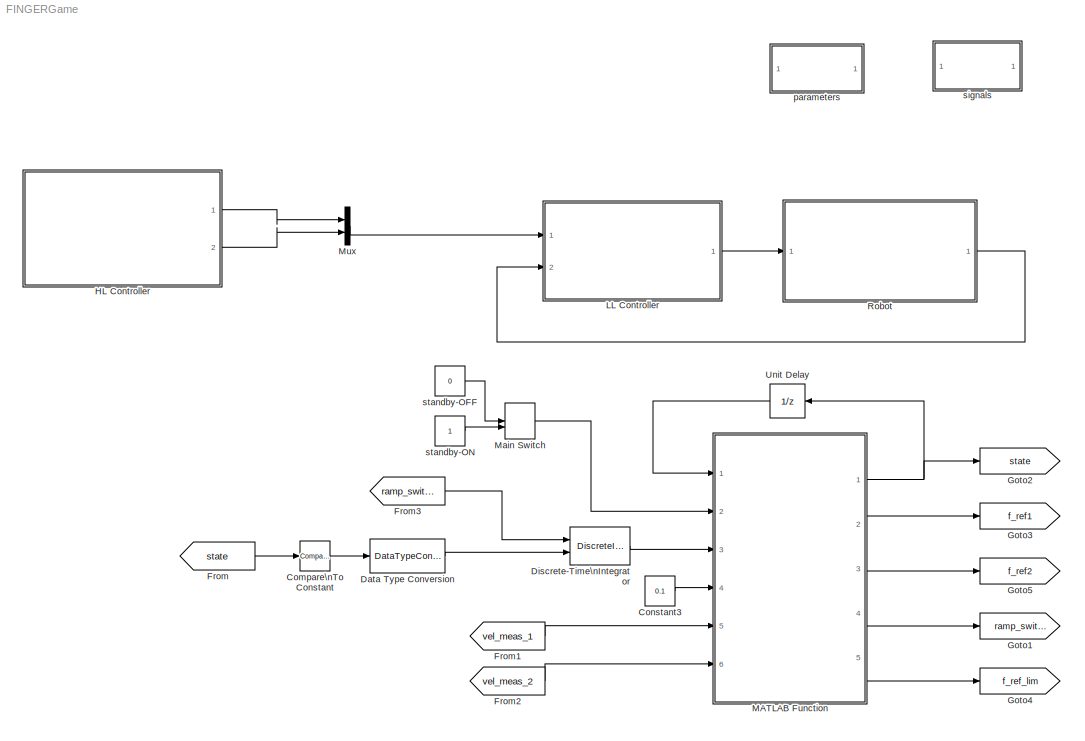
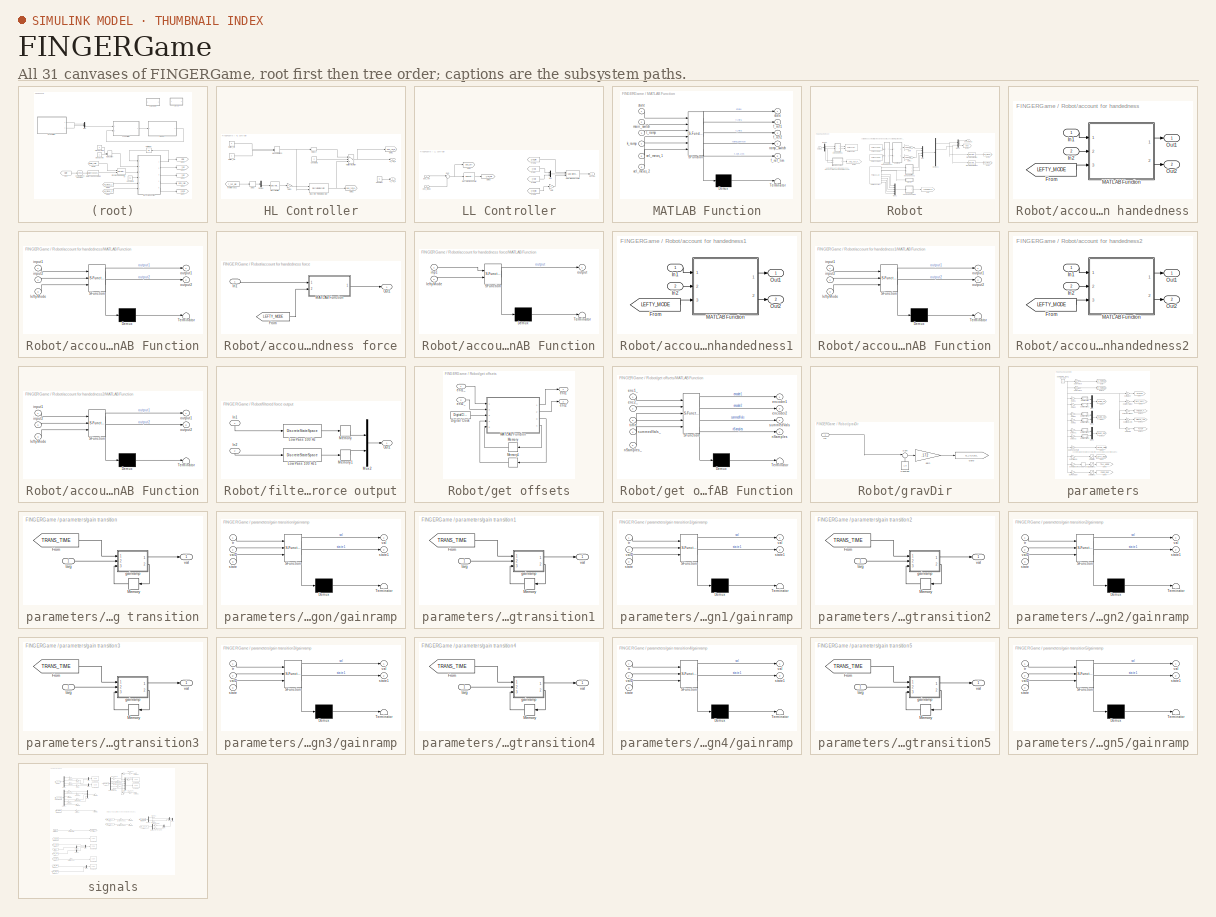
[diagram: thumbnail index - all 31 canvases of the model, root first then tree order]
MODEL FINGERGame
KIND model
CONFIG InitFcn = settupFilter;
CONFIG PreLoadFcn = settupFilter;
BLOCK [Reference] Compare\nTo Constant  REF=simulink/Logic and Bit\nOperations/Compare\nTo Constant
  OutDataTypeStr = boolean
  Ports = [1, 1]
  SID = 2805
  SourceBlock = simulink/Logic and Bit\nOperations/Compare\nTo Constant
  SourceType = Compare To Constant
  ZeroCross = on
  const = 2
  relop = ==
BLOCK [Constant] Constant3
  SID = 2799
  Value = 0.1
BLOCK [DataTypeConversion] Data Type Conversion
  RndMeth = Floor
  SID = 2804
  SaturateOnIntegerOverflow = off
BLOCK [DiscreteIntegrator] Discrete-Time\nIntegrator
  ExternalReset = either
  ICPrevOutput = DiscIntNeverNeededParam
  ICPrevScaledInput = DiscIntNeverNeededParam
  InitialConditionSetting = State (most efficient)
  LowerSaturationLimit = 0
  Ports = [2, 1]
  SID = 2798
  SampleTime = -1
  UpperSaturationLimit = 0.9
BLOCK [From] From
  GotoTag = state
  SID = 2802
  TagVisibility = global
BLOCK [From] From1
  GotoTag = vel_meas_1
  SID = 2823
  TagVisibility = global
BLOCK [From] From2
  GotoTag = vel_meas_2
  SID = 2824
  TagVisibility = global
BLOCK [From] From3
  GotoTag = ramp_switch
  SID = 2842
  TagVisibility = global
BLOCK [Goto] Goto1
  GotoTag = ramp_switch
  SID = 2796
  TagVisibility = global
BLOCK [Goto] Goto2
  GotoTag = state
  SID = 2800
  TagVisibility = global
BLOCK [Goto] Goto3
  GotoTag = f_ref1
  SID = 2793
  TagVisibility = global
BLOCK [Goto] Goto4
  GotoTag = f_ref_lim
  SID = 2810
  TagVisibility = global
BLOCK [Goto] Goto5
  GotoTag = f_ref2
  SID = 2845
  TagVisibility = global
BLOCK [SubSystem] HL Controller
  Ports = [0, 2]
  RequestExecContextInheritance = off
  SID = 2743
  Variant = off
BLOCK [Constant] HL Controller/Constant
  SID = 2708
  Value = .8
BLOCK [Constant] HL Controller/Constant2
  SID = 2733
  Value = 0
BLOCK [Delay] HL Controller/Delay
  DelayLength = 1
  InitialCondition = 0
  InputPortMap = u0
  Ports = [1, 1]
  SID = 2724
BLOCK [Delay] HL Controller/Delay1
  DelayLength = 1
  InitialCondition = 0
  InputPortMap = u0
  Ports = [1, 1]
  SID = 2758
BLOCK [Demux] HL Controller/Demux
  DisplayOption = bar
  Outputs = 2
  Ports = [1, 2]
  SID = 2712
BLOCK [DiscreteFilter] HL Controller/Discrete Filter
  Denominator = [a_hp]
  InputPortMap = u0
  Numerator = [b_hp]
  Ports = [1, 1]
  SID = 2727
BLOCK [DiscreteIntegrator] HL Controller/Discrete-Time\nIntegrator
  ExternalReset = either
  ICPrevOutput = DiscIntNeverNeededParam
  ICPrevScaledInput = DiscIntNeverNeededParam
  InitialConditionSetting = State (most efficient)
  LimitOutput = on
  LowerSaturationLimit = 0
  Ports = [2, 1]
  SID = 2718
  SampleTime = -1
  UpperSaturationLimit = 0.9
BLOCK [Gain] HL Controller/Gain1
  Gain = -1
  OutDataTypeStr = Inherit: Inherit via internal rule
  ParamDataTypeStr = Inherit: Inherit via internal rule
  SID = 2716
  SaturateOnIntegerOverflow = off
BLOCK [Goto] HL Controller/Goto1
  GotoTag = pos_ref_g
  SID = 2689
  TagVisibility = global
BLOCK [Goto] HL Controller/Goto2
  GotoTag = pos_ref_g_2
  SID = 2760
  TagVisibility = global
BLOCK [ManualSwitch] HL Controller/Manual Switch3
  CurrentSetting = 0
  SID = 2734
BLOCK [MultiPortSwitch] HL Controller/Multiport\nSwitch
  DataPortIndices = {0,1}
  DataPortOrder = Specify indices
  InputSameDT = off
  Ports = [3, 1]
  SID = 2732
  SaturateOnIntegerOverflow = off
BLOCK [Constant] HL Controller/Switch_Off
  SID = 2728
  Value = 0
BLOCK [Constant] HL Controller/Switch_On
  SID = 2735
BLOCK [From] HL Controller/from forces2
  GotoTag = f_ref_pid
  SID = 2711
  TagVisibility = global
BLOCK [Outport] HL Controller/p_ref_b
  IconDisplay = Port number
  Port = 2
  SID = 2746
BLOCK [Outport] HL Controller/p_ref_g
  IconDisplay = Port number
  SID = 2745
BLOCK [SubSystem] LL Controller
  Ports = [2, 1]
  RequestExecContextInheritance = off
  SID = 133
  Variant = off
BLOCK [Reference] LL Controller/Discrete PID Controller  REF=simulink/Continuous/PID Controller
  AntiWindupMode = none
  Controller = PID
  ControllerParametersSource = internal
  D = 0.7
  DGainOutDataTypeStr = Inherit: Inherit via internal rule
  DOutDataTypeStr = Inherit: Inherit via internal rule
  DOutMax = []
  DOutMin = []
  DParamDataTypeStr = Inherit: Inherit via internal rule
  DParamMax = []
  DParamMin = []
  DProdOutDataTypeStr = Inherit: Inherit via internal rule
  DifferentiatorICPrevScaledInput = 0
  DifferentiatorOutDataTypeStr = Inherit: Inherit via internal rule
  DifferentiatorOutMax = []
  DifferentiatorOutMin = []
  ExternalReset = none
  FilterContinuousStateAttributes = ''
  FilterMethod = Forward Euler
  FilterOutDataTypeStr = Inherit: Inherit via internal rule
  FilterOutMax = []
  FilterOutMin = []
  FilterRTWStateStorageClass = Auto
  FilterStateMustResolveToSignalObject = off
  Form = Parallel
  I = 0
  IGainOutDataTypeStr = Inherit: Inherit via internal rule
  IOutDataTypeStr = Inherit: Inherit via internal rule
  IOutMax = []
  IOutMin = []
  IParamDataTypeStr = Inherit: Inherit via internal rule
  IParamMax = []
  IParamMin = []
  IProdOutDataTypeStr = Inherit: Inherit via internal rule
  IgnoreLimit = off
  InitialConditionForFilter = 0
  InitialConditionForIntegrator = 0
  InitialConditionSource = internal
  IntegratorContinuousStateAttributes = ''
  IntegratorMethod = Forward Euler
  IntegratorOutDataTypeStr = Inherit: Inherit via internal rule
  IntegratorOutMax = []
  IntegratorOutMin = []
  IntegratorRTWStateStorageClass = Auto
  IntegratorStateMustResolveToSignalObject = off
  Kb = 1
  KbOutDataTypeStr = Inherit: Inherit via internal rule
  KbOutMax = []
  KbOutMin = []
  KbParamDataTypeStr = Inherit: Inherit via internal rule
  KbParamMax = []
  KbParamMin = []
  Kt = 1
  KtOutDataTypeStr = Inherit: Inherit via internal rule
  KtOutMax = []
  KtOutMin = []
  KtParamDataTypeStr = Inherit: Inherit via internal rule
  KtParamMax = []
  KtParamMin = []
  LimitOutput = off
  LinearizeAsGain = off
  LockScale = off
  LowerSaturationLimit = -inf
  N = 100
  NGainOutDataTypeStr = Inherit: Inherit via internal rule
  NOutDataTypeStr = Inherit: Inherit via internal rule
  NOutMax = []
  NOutMin = []
  NParamDataTypeStr = Inherit: Inherit via internal rule
  NParamMax = []
  NParamMin = []
  NProdOutDataTypeStr = Inherit: Inherit via internal rule
  P = 10
  PGainOutDataTypeStr = Inherit: Inherit via internal rule
  POutDataTypeStr = Inherit: Inherit via internal rule
  POutMax = []
  POutMin = []
  PParamDataTypeStr = Inherit: Inherit via internal rule
  PParamMax = []
  PParamMin = []
  PProdOutDataTypeStr = Inherit: Inherit via internal rule
  Ports = [1, 1]
  RndMeth = Floor
  SID = 2686
  SampleTime = -1
  SaturateOnIntegerOverflow = off
  SaturationOutDataTypeStr = Inherit: Same as input
  SaturationOutMax = []
  SaturationOutMin = []
  SourceBlock = simulink/Continuous/PID Controller
  SourceType = PID 1dof
  SumAccumDataTypeStr = Inherit: Inherit via internal rule
  SumDAccumDataTypeStr = Inherit: Inherit via internal rule
  SumDOutDataTypeStr = Inherit: Inherit via internal rule
  SumDOutMax = []
  SumDOutMin = []
  SumI1AccumDataTypeStr = Inherit: Inherit via internal rule
  SumI1OutDataTypeStr = Inherit: Inherit via internal rule
  SumI1OutMax = []
  SumI1OutMin = []
  SumI2AccumDataTypeStr = Inherit: Inherit via internal rule
  SumI2OutDataTypeStr = Inherit: Inherit via internal rule
  SumI2OutMax = []
  SumI2OutMin = []
  SumI3AccumDataTypeStr = Inherit: Inherit via internal rule
  SumI3OutDataTypeStr = Inherit: Inherit via internal rule
  SumI3OutMax = []
  SumI3OutMin = []
  SumOutDataTypeStr = Inherit: Inherit via internal rule
  SumOutMax = []
  SumOutMin = []
  TimeDomain = Discrete-time
  TrackingMode = off
  UpperSaturationLimit = inf
  UseFilter = on
  ZeroCross = on
BLOCK [Outport] LL Controller/Forces
  IconDisplay = Port number
  SID = 138
BLOCK [From] LL Controller/From
  GotoTag = f_ref1
  SID = 2794
  TagVisibility = global
BLOCK [From] LL Controller/From1
  GotoTag = f_ref_lim
  SID = 2807
  TagVisibility = global
BLOCK [From] LL Controller/From2
  GotoTag = f_ref_lim
  SID = 2808
  TagVisibility = global
BLOCK [From] LL Controller/From3
  GotoTag = f_ref2
  SID = 2843
  TagVisibility = global
BLOCK [Gain] LL Controller/Gain
  Gain = -1
  OutDataTypeStr = Inherit: Inherit via internal rule
  ParamDataTypeStr = Inherit: Inherit via internal rule
  SID = 2809
  SaturateOnIntegerOverflow = off
BLOCK [Goto] LL Controller/Goto2
  GotoTag = pos_err
  SID = 2690
  TagVisibility = global
BLOCK [Goto] LL Controller/Goto3
  GotoTag = f_ref_pid
  SID = 2706
  TagVisibility = global
BLOCK [Mux] LL Controller/Mux
  DisplayOption = bar
  Inputs = 2
  Ports = [2, 1]
  SID = 2844
BLOCK [Reference] LL Controller/Saturation\nDynamic  REF=simulink/Discontinuities/Saturation\nDynamic
  DoSatur = off
  LockScale = off
  OutDataType = fixdt(1, 16)
  OutDataTypeStr = Inherit: Same as second input
  OutMax = []
  OutMin = []
  OutScaling = 2^-10
  OutputDataTypeScalingMode = Same as second input
  Ports = [3, 1]
  RndMeth = Floor
  SID = 2840
  SourceBlock = simulink/Discontinuities/Saturation\nDynamic
  SourceType = Saturation Dynamic
BLOCK [Sum] LL Controller/Sum
  IconShape = round
  InputSameDT = off
  Inputs = |+-
  OutDataTypeStr = Inherit: Inherit via internal rule
  Ports = [2, 1]
  SID = 2687
  SaturateOnIntegerOverflow = off
BLOCK [Inport] LL Controller/pos_meas
  IconDisplay = Port number
  Port = 2
  SID = 135
BLOCK [Inport] LL Controller/pos_ref
  IconDisplay = Port number
  SID = 134
BLOCK [SubSystem] MATLAB Function
  ErrorFcn = Stateflow.Translate.translate
  MinAlgLoopOccurrences = on
  PermitHierarchicalResolution = ParametersOnly
  Ports = [6, 5]
  RequestExecContextInheritance = off
  SFBlockType = MATLAB Function
  SID = 2784
  TreatAsAtomicUnit = on
  Variant = off
BLOCK [Demux] MATLAB Function/ Demux 
  Outputs = 1
  Ports = [1, 1]
  SID = 2784::17
BLOCK [S-Function] MATLAB Function/ SFunction 
  EnableBusSupport = on
  FunctionName = sf_sfun
  PortCounts = [6 6]
  Ports = [6, 6]
  SFunctionDeploymentMode = off
  SID = 2784::16
  Tag = Stateflow S-Function FINGERGame 2
BLOCK [Terminator] MATLAB Function/ Terminator 
  SID = 2784::18
BLOCK [Outport] MATLAB Function/f_ref1
  IconDisplay = Port number
  Port = 2
  SID = 2784::20
BLOCK [Outport] MATLAB Function/f_ref2
  IconDisplay = Port number
  Port = 3
  SID = 2784::28
BLOCK [Outport] MATLAB Function/f_ref_lim
  IconDisplay = Port number
  Port = 5
  SID = 2784::24
BLOCK [Inport] MATLAB Function/k_ramp
  IconDisplay = Port number
  Port = 4
  SID = 2784::23
BLOCK [Inport] MATLAB Function/main_switch
  IconDisplay = Port number
  Port = 2
  SID = 2784::19
BLOCK [Outport] MATLAB Function/ramp_switch
  IconDisplay = Port number
  Port = 4
  SID = 2784::21
BLOCK [Outport] MATLAB Function/state
  IconDisplay = Port number
  SID = 2784::5
BLOCK [Inport] MATLAB Function/state 
  IconDisplay = Port number
  SID = 2784::1
BLOCK [Inport] MATLAB Function/t_ramp
  IconDisplay = Port number
  Port = 3
  SID = 2784::22
BLOCK [Inport] MATLAB Function/vel_meas_1
  IconDisplay = Port number
  Port = 5
  SID = 2784::26
BLOCK [Inport] MATLAB Function/vel_meas_2
  IconDisplay = Port number
  Port = 6
  SID = 2784::27
BLOCK [ManualSwitch] Main Switch
  SID = 2786
BLOCK [Mux] Mux
  DisplayOption = bar
  Inputs = 2
  Ports = [2, 1]
  SID = 2757
BLOCK [SubSystem] Robot
  Ports = [1, 1]
  RequestExecContextInheritance = off
  SID = 68
  Variant = off
BLOCK [Demux] Robot/Demux
  DisplayOption = bar
  Outputs = 2
  Ports = [1, 2]
  SID = 71
BLOCK [Demux] Robot/Demux1
  DisplayOption = bar
  Ports = [1, 4]
  SID = 2749
BLOCK [Reference] Robot/Discrete Derivative  REF=simulink/Discrete/Discrete Derivative
  DoSatur = off
  ICPrevScaledInput = 0.0
  InputProcessing = Elements as channels (sample based)
  LockScale = off
  OutDataType = fixdt(1, 16)
  OutDataTypeStr = Inherit: Inherit via internal rule
  OutMax = []
  OutMin = []
  OutScaling = 2^-10
  OutputDataTypeScalingMode = Inherit via internal rule
  Ports = [1, 1]
  RndMeth = Floor
  SID = 2825
  SourceBlock = simulink/Discrete/Discrete Derivative
  SourceType = Discrete Derivative
  gainval = 1.0
BLOCK [Reference] Robot/Discrete Derivative1  REF=simulink/Discrete/Discrete Derivative
  DoSatur = off
  ICPrevScaledInput = 0.0
  InputProcessing = Elements as channels (sample based)
  LockScale = off
  OutDataType = fixdt(1, 16)
  OutDataTypeStr = Inherit: Inherit via internal rule
  OutMax = []
  OutMin = []
  OutScaling = 2^-10
  OutputDataTypeScalingMode = Inherit via internal rule
  Ports = [1, 1]
  RndMeth = Floor
  SID = 2826
  SourceBlock = simulink/Discrete/Discrete Derivative
  SourceType = Discrete Derivative
  gainval = 1.0
BLOCK [Inport] Robot/Forces
  IconDisplay = Port number
  SID = 69
BLOCK [Gain] Robot/Gain
  Gain = 1/4500.0
  OutDataTypeStr = Inherit: Inherit via internal rule
  ParamDataTypeStr = Inherit: Inherit via internal rule
  SID = 72
  SaturateOnIntegerOverflow = off
BLOCK [Gain] Robot/Gain1
  Gain = 1/4500.0
  OutDataTypeStr = Inherit: Inherit via internal rule
  ParamDataTypeStr = Inherit: Inherit via internal rule
  SID = 232
  SaturateOnIntegerOverflow = off
BLOCK [Goto] Robot/Goto
  GotoTag = LOADCELLS
  SID = 1268
  TagVisibility = global
BLOCK [Goto] Robot/Goto1
  GotoTag = AVE_ACT_FORCE
  SID = 1550
  TagVisibility = global
BLOCK [Goto] Robot/Goto2
  GotoTag = pos
  SID = 2750
  TagVisibility = global
BLOCK [Goto] Robot/Goto5
  GotoTag = vel_meas_1
  SID = 2827
  TagVisibility = global
BLOCK [Goto] Robot/Goto6
  GotoTag = vel_meas_2
  SID = 2828
  TagVisibility = global
BLOCK [Mux] Robot/Mux
  DisplayOption = bar
  Ports = [4, 1]
  SID = 75
BLOCK [Mux] Robot/Mux1
  DisplayOption = bar
  Inputs = 5
  Ports = [5, 1]
  SID = 1257
BLOCK [Mux] Robot/Mux3
  DisplayOption = bar
  Inputs = 2
  Ports = [2, 1]
  SID = 2751
BLOCK [Reference] Robot/PCI 6221 ENC   REF=xpcnilib/Incremental\nEncoder/PCI 6221 ENC 
  Ports = [0, 1]
  SID = 76
  SourceBlock = xpcnilib/Incremental\nEncoder/PCI 6221 ENC
  SourceType = encinpnipci6221
  channel = 0
  countMode = Quadrature Mode x4
  filter = Minimum pulse width 125 nanoseconds
  indexPhase = A low B low
  initCount = 0
  reload = off
  sampleTime = 0.001
  slot = -1
BLOCK [Reference] Robot/PCI 6221 ENC 1  REF=xpcnilib/Incremental\nEncoder/PCI 6221 ENC 
  Ports = [0, 1]
  SID = 77
  SourceBlock = xpcnilib/Incremental\nEncoder/PCI 6221 ENC
  SourceType = encinpnipci6221
  channel = 1
  countMode = Quadrature Mode x4
  filter = Minimum pulse width 125 nanoseconds
  indexPhase = A low B low
  initCount = 0
  reload = off
  sampleTime = 0.001
  slot = -1
BLOCK [Reference] Robot/PCI-6221 AD1  REF=xpcnilib/A//D/M Series/PCI-6221 AD
  Ports = [0, 8]
  SID = 78
  SourceBlock = xpcnilib/A//D/M Series/PCI-6221 AD
  SourceType = adnipci6221
  channel = [1 2 3 4 5 6 7 8]
  coupling = [0]
  range = [10]
  sampletime = 0.001
  scantime = 5e-6
  slot = -1
BLOCK [Reference] Robot/PCI-6221 DA  REF=xpcnilib/D//A/M Series/PCI-6221 DA
  Ports = [2]
  SID = 79
  SourceBlock = xpcnilib/D//A/M Series/PCI-6221 DA
  SourceType = danipci6221
  channel = [1 2]
  initValue = [0]
  reset = [1]
  sampletime = 0.001
  slot = -1
BLOCK [SubSystem] Robot/account for handedness
  Ports = [2, 2]
  RequestExecContextInheritance = off
  SID = 251
  Variant = off
BLOCK [SubSystem] Robot/account for handedness force
  Ports = [1, 1]
  RequestExecContextInheritance = off
  SID = 1265
  Variant = off
BLOCK [From] Robot/account for handedness force/From
  GotoTag = LEFTY_MODE
  SID = 1261
  TagVisibility = global
BLOCK [Inport] Robot/account for handedness force/In1
  IconDisplay = Port number
  SID = 1266
BLOCK [SubSystem] Robot/account for handedness force/MATLAB Function
  ErrorFcn = Stateflow.Translate.translate
  PermitHierarchicalResolution = ParametersOnly
  Ports = [2, 1]
  RequestExecContextInheritance = off
  SFBlockType = MATLAB Function
  SID = 1262
  TreatAsAtomicUnit = on
  Variant = off
BLOCK [Demux] Robot/account for handedness force/MATLAB Function/ Demux 
  Outputs = 1
  Ports = [1, 1]
  SID = 1262::27
BLOCK [S-Function] Robot/account for handedness force/MATLAB Function/ SFunction 
  EnableBusSupport = on
  FunctionName = sf_sfun
  PortCounts = [2 2]
  Ports = [2, 2]
  SFunctionDeploymentMode = off
  SID = 1262::26
  Tag = Stateflow S-Function FINGERGame 26
BLOCK [Terminator] Robot/account for handedness force/MATLAB Function/ Terminator 
  SID = 1262::28
BLOCK [Inport] Robot/account for handedness force/MATLAB Function/inp1
  IconDisplay = Port number
  SID = 1262::1
BLOCK [Inport] Robot/account for handedness force/MATLAB Function/leftyMode
  IconDisplay = Port number
  Port = 2
  SID = 1262::24
BLOCK [Outport] Robot/account for handedness force/MATLAB Function/output
  IconDisplay = Port number
  SID = 1262::5
BLOCK [Outport] Robot/account for handedness force/Out1
  IconDisplay = Port number
  SID = 1267
BLOCK [From] Robot/account for handedness/From
  GotoTag = LEFTY_MODE
  SID = 249
  TagVisibility = global
BLOCK [Inport] Robot/account for handedness/In1
  IconDisplay = Port number
  SID = 252
BLOCK [Inport] Robot/account for handedness/In2
  IconDisplay = Port number
  Port = 2
  SID = 253
BLOCK [SubSystem] Robot/account for handedness/MATLAB Function
  ErrorFcn = Stateflow.Translate.translate
  PermitHierarchicalResolution = ParametersOnly
  Ports = [3, 2]
  RequestExecContextInheritance = off
  SFBlockType = MATLAB Function
  SID = 250
  TreatAsAtomicUnit = on
  Variant = off
BLOCK [Demux] Robot/account for handedness/MATLAB Function/ Demux 
  Outputs = 1
  Ports = [1, 1]
  SID = 250::27
BLOCK [S-Function] Robot/account for handedness/MATLAB Function/ SFunction 
  EnableBusSupport = on
  FunctionName = sf_sfun
  PortCounts = [3 3]
  Ports = [3, 3]
  SFunctionDeploymentMode = off
  SID = 250::26
  Tag = Stateflow S-Function FINGERGame 11
BLOCK [Terminator] Robot/account for handedness/MATLAB Function/ Terminator 
  SID = 250::28
BLOCK [Inport] Robot/account for handedness/MATLAB Function/input1
  IconDisplay = Port number
  SID = 250::1
BLOCK [Inport] Robot/account for handedness/MATLAB Function/input2
  IconDisplay = Port number
  Port = 2
  SID = 250::23
BLOCK [Inport] Robot/account for handedness/MATLAB Function/leftyMode
  IconDisplay = Port number
  Port = 3
  SID = 250::24
BLOCK [Outport] Robot/account for handedness/MATLAB Function/output1
  IconDisplay = Port number
  SID = 250::5
BLOCK [Outport] Robot/account for handedness/MATLAB Function/output2
  IconDisplay = Port number
  Port = 2
  SID = 250::25
BLOCK [Outport] Robot/account for handedness/Out1
  IconDisplay = Port number
  SID = 254
BLOCK [Outport] Robot/account for handedness/Out2
  IconDisplay = Port number
  Port = 2
  SID = 255
BLOCK [SubSystem] Robot/account for handedness1
  Ports = [2, 2]
  RequestExecContextInheritance = off
  SID = 256
  Variant = off
BLOCK [From] Robot/account for handedness1/From
  GotoTag = LEFTY_MODE
  SID = 259
  TagVisibility = global
BLOCK [Inport] Robot/account for handedness1/In1
  IconDisplay = Port number
  SID = 257
BLOCK [Inport] Robot/account for handedness1/In2
  IconDisplay = Port number
  Port = 2
  SID = 258
BLOCK [SubSystem] Robot/account for handedness1/MATLAB Function
  ErrorFcn = Stateflow.Translate.translate
  PermitHierarchicalResolution = ParametersOnly
  Ports = [3, 2]
  RequestExecContextInheritance = off
  SFBlockType = MATLAB Function
  SID = 260
  TreatAsAtomicUnit = on
  Variant = off
BLOCK [Demux] Robot/account for handedness1/MATLAB Function/ Demux 
  Outputs = 1
  Ports = [1, 1]
  SID = 260::27
BLOCK [S-Function] Robot/account for handedness1/MATLAB Function/ SFunction 
  EnableBusSupport = on
  FunctionName = sf_sfun
  PortCounts = [3 3]
  Ports = [3, 3]
  SFunctionDeploymentMode = off
  SID = 260::26
  Tag = Stateflow S-Function FINGERGame 12
BLOCK [Terminator] Robot/account for handedness1/MATLAB Function/ Terminator 
  SID = 260::28
BLOCK [Inport] Robot/account for handedness1/MATLAB Function/input1
  IconDisplay = Port number
  SID = 260::1
BLOCK [Inport] Robot/account for handedness1/MATLAB Function/input2
  IconDisplay = Port number
  Port = 2
  SID = 260::23
BLOCK [Inport] Robot/account for handedness1/MATLAB Function/leftyMode
  IconDisplay = Port number
  Port = 3
  SID = 260::24
BLOCK [Outport] Robot/account for handedness1/MATLAB Function/output1
  IconDisplay = Port number
  SID = 260::5
BLOCK [Outport] Robot/account for handedness1/MATLAB Function/output2
  IconDisplay = Port number
  Port = 2
  SID = 260::25
BLOCK [Outport] Robot/account for handedness1/Out1
  IconDisplay = Port number
  SID = 261
BLOCK [Outport] Robot/account for handedness1/Out2
  IconDisplay = Port number
  Port = 2
  SID = 262
BLOCK [SubSystem] Robot/account for handedness2
  Ports = [2, 2]
  RequestExecContextInheritance = off
  SID = 263
  Variant = off
BLOCK [From] Robot/account for handedness2/From
  GotoTag = LEFTY_MODE
  SID = 266
  TagVisibility = global
BLOCK [Inport] Robot/account for handedness2/In1
  IconDisplay = Port number
  SID = 264
BLOCK [Inport] Robot/account for handedness2/In2
  IconDisplay = Port number
  Port = 2
  SID = 265
BLOCK [SubSystem] Robot/account for handedness2/MATLAB Function
  ErrorFcn = Stateflow.Translate.translate
  PermitHierarchicalResolution = ParametersOnly
  Ports = [3, 2]
  RequestExecContextInheritance = off
  SFBlockType = MATLAB Function
  SID = 267
  TreatAsAtomicUnit = on
  Variant = off
BLOCK [Demux] Robot/account for handedness2/MATLAB Function/ Demux 
  Outputs = 1
  Ports = [1, 1]
  SID = 267::27
BLOCK [S-Function] Robot/account for handedness2/MATLAB Function/ SFunction 
  EnableBusSupport = on
  FunctionName = sf_sfun
  PortCounts = [3 3]
  Ports = [3, 3]
  SFunctionDeploymentMode = off
  SID = 267::26
  Tag = Stateflow S-Function FINGERGame 13
BLOCK [Terminator] Robot/account for handedness2/MATLAB Function/ Terminator 
  SID = 267::28
BLOCK [Inport] Robot/account for handedness2/MATLAB Function/input1
  IconDisplay = Port number
  SID = 267::1
BLOCK [Inport] Robot/account for handedness2/MATLAB Function/input2
  IconDisplay = Port number
  Port = 2
  SID = 267::23
BLOCK [Inport] Robot/account for handedness2/MATLAB Function/leftyMode
  IconDisplay = Port number
  Port = 3
  SID = 267::24
BLOCK [Outport] Robot/account for handedness2/MATLAB Function/output1
  IconDisplay = Port number
  SID = 267::5
BLOCK [Outport] Robot/account for handedness2/MATLAB Function/output2
  IconDisplay = Port number
  Port = 2
  SID = 267::25
BLOCK [Outport] Robot/account for handedness2/Out1
  IconDisplay = Port number
  SID = 268
BLOCK [Outport] Robot/account for handedness2/Out2
  IconDisplay = Port number
  Port = 2
  SID = 269
BLOCK [SubSystem] Robot/filtered force output
  Ports = [2, 1]
  RequestExecContextInheritance = off
  SID = 1554
  Variant = off
BLOCK [Inport] Robot/filtered force output/In1
  IconDisplay = Port number
  SID = 1555
BLOCK [Inport] Robot/filtered force output/In2
  IconDisplay = Port number
  Port = 2
  SID = 1556
BLOCK [DiscreteStateSpace] Robot/filtered force output/Low Pass 100 Hz
  A = Alow
  B = Blow
  C = Clow
  D = Dlow
  SID = 1551
  SampleTime = -1
  X0 = x0low
BLOCK [DiscreteStateSpace] Robot/filtered force output/Low Pass 100 Hz1
  A = Alow
  B = Blow
  C = Clow
  D = Dlow
  SID = 1552
  SampleTime = -1
  X0 = x0low
BLOCK [Memory] Robot/filtered force output/Memory
  SID = 1618
BLOCK [Memory] Robot/filtered force output/Memory1
  SID = 1619
BLOCK [Mux] Robot/filtered force output/Mux2
  DisplayOption = bar
  Inputs = 2
  Ports = [2, 1]
  SID = 1553
BLOCK [Outport] Robot/filtered force output/Out1
  IconDisplay = Port number
  SID = 1557
BLOCK [SubSystem] Robot/get offsets
  Ports = [2, 2]
  RequestExecContextInheritance = off
  SID = 220
  Variant = off
BLOCK [DigitalClock] Robot/get offsets/Digital Clock
  SID = 229
  SampleTime = .001
BLOCK [SubSystem] Robot/get offsets/MATLAB Function
  ErrorFcn = Stateflow.Translate.translate
  PermitHierarchicalResolution = ParametersOnly
  Ports = [5, 4]
  RequestExecContextInheritance = off
  SFBlockType = MATLAB Function
  SID = 217
  TreatAsAtomicUnit = on
  Variant = off
BLOCK [Demux] Robot/get offsets/MATLAB Function/ Demux 
  Outputs = 1
  Ports = [1, 1]
  SID = 217::31
BLOCK [S-Function] Robot/get offsets/MATLAB Function/ SFunction 
  EnableBusSupport = on
  FunctionName = sf_sfun
  PortCounts = [5 5]
  Ports = [5, 5]
  SFunctionDeploymentMode = off
  SID = 217::30
  Tag = Stateflow S-Function FINGERGame 9
BLOCK [Terminator] Robot/get offsets/MATLAB Function/ Terminator 
  SID = 217::32
BLOCK [Inport] Robot/get offsets/MATLAB Function/enc1_
  IconDisplay = Port number
  SID = 217::1
BLOCK [Inport] Robot/get offsets/MATLAB Function/enc2_
  IconDisplay = Port number
  Port = 2
  SID = 217::23
BLOCK [Outport] Robot/get offsets/MATLAB Function/encoder1
  IconDisplay = Port number
  SID = 217::5
BLOCK [Outport] Robot/get offsets/MATLAB Function/encoder2
  IconDisplay = Port number
  Port = 2
  SID = 217::27
BLOCK [Outport] Robot/get offsets/MATLAB Function/nSamples
  IconDisplay = Port number
  Port = 4
  SID = 217::29
BLOCK [Inport] Robot/get offsets/MATLAB Function/nSamples_
  IconDisplay = Port number
  Port = 5
  SID = 217::26
BLOCK [Outport] Robot/get offsets/MATLAB Function/summedVals
  IconDisplay = Port number
  Port = 3
  SID = 217::28
BLOCK [Inport] Robot/get offsets/MATLAB Function/summedVals_
  IconDisplay = Port number
  Port = 4
  SID = 217::25
BLOCK [Inport] Robot/get offsets/MATLAB Function/time
  IconDisplay = Port number
  Port = 3
  SID = 217::24
BLOCK [Memory] Robot/get offsets/Memory
  SID = 218
BLOCK [Memory] Robot/get offsets/Memory1
  SID = 219
  X0 = [0,0]
BLOCK [Outport] Robot/get offsets/enc1
  IconDisplay = Port number
  SID = 223
BLOCK [Inport] Robot/get offsets/enc1_
  IconDisplay = Port number
  SID = 221
BLOCK [Outport] Robot/get offsets/enc2
  IconDisplay = Port number
  Port = 2
  SID = 224
BLOCK [Inport] Robot/get offsets/enc2_
  IconDisplay = Port number
  Port = 2
  SID = 222
BLOCK [SubSystem] Robot/gravDir
  Ports = [1]
  RequestExecContextInheritance = off
  SID = 1255
  Variant = off
BLOCK [Constant] Robot/gravDir/Constant
  SID = 70
  Value = 1.5
BLOCK [Goto] Robot/gravDir/Goto
  GotoTag = G_ACCEL
  SID = 1518
  TagVisibility = global
BLOCK [Inport] Robot/gravDir/In1
  IconDisplay = Port number
  SID = 1256
BLOCK [Sum] Robot/gravDir/Sum
  IconShape = round
  InputSameDT = off
  Inputs = |+-
  OutDataTypeStr = Inherit: Inherit via internal rule
  Ports = [2, 1]
  SID = 80
  SaturateOnIntegerOverflow = off
BLOCK [Gain] Robot/gravDir/gain
  Gain = .172
  OutDataTypeStr = Inherit: Inherit via internal rule
  ParamDataTypeStr = Inherit: Inherit via internal rule
  SID = 74
  SaturateOnIntegerOverflow = off
BLOCK [Outport] Robot/pos_meas
  IconDisplay = Port number
  SID = 2752
BLOCK [UnitDelay] Unit Delay
  InputProcessing = Elements as channels (sample based)
  SID = 2785
  SampleTime = -1
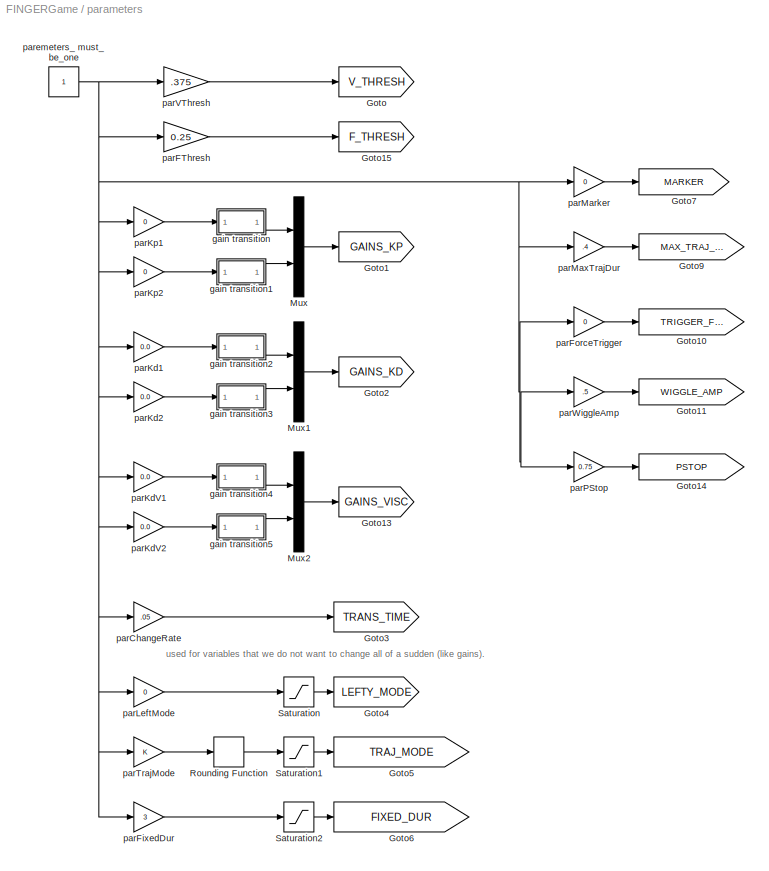
BLOCK [SubSystem] parameters
  Ports = []
  RequestExecContextInheritance = off
  SID = 53
  Variant = off
BLOCK [Goto] parameters/Goto
  GotoTag = V_THRESH
  SID = 52
  TagVisibility = global
BLOCK [Goto] parameters/Goto1
  GotoTag = GAINS_KP
  SID = 142
  TagVisibility = global
BLOCK [Goto] parameters/Goto10
  GotoTag = TRIGGER_FORCE
  SID = 1371
  TagVisibility = global
BLOCK [Goto] parameters/Goto11
  GotoTag = WIGGLE_AMP
  SID = 1514
  TagVisibility = global
BLOCK [Goto] parameters/Goto13
  GotoTag = GAINS_VISC
  SID = 1530
  TagVisibility = global
BLOCK [Goto] parameters/Goto14
  GotoTag = PSTOP
  SID = 1548
  TagVisibility = global
BLOCK [Goto] parameters/Goto15
  GotoTag = F_THRESH
  SID = 1603
  TagVisibility = global
BLOCK [Goto] parameters/Goto2
  GotoTag = GAINS_KD
  SID = 146
  TagVisibility = global
BLOCK [Goto] parameters/Goto3
  GotoTag = TRANS_TIME
  SID = 204
  TagVisibility = global
BLOCK [Goto] parameters/Goto4
  GotoTag = LEFTY_MODE
  SID = 246
  TagVisibility = global
BLOCK [Goto] parameters/Goto5
  GotoTag = TRAJ_MODE
  SID = 458
  TagVisibility = global
BLOCK [Goto] parameters/Goto6
  GotoTag = FIXED_DUR
  SID = 490
  TagVisibility = global
BLOCK [Goto] parameters/Goto7
  GotoTag = MARKER
  SID = 1251
  TagVisibility = global
BLOCK [Goto] parameters/Goto9
  GotoTag = MAX_TRAJ_DUR
  SID = 1311
  TagVisibility = global
BLOCK [Mux] parameters/Mux
  DisplayOption = bar
  Inputs = 2
  Ports = [2, 1]
  SID = 145
BLOCK [Mux] parameters/Mux1
  DisplayOption = bar
  Inputs = 2
  Ports = [2, 1]
  SID = 149
BLOCK [Mux] parameters/Mux2
  DisplayOption = bar
  Inputs = 2
  Ports = [2, 1]
  SID = 1531
BLOCK [Rounding] parameters/Rounding Function
  Operator = round
  SID = 994
BLOCK [Saturate] parameters/Saturation
  InputPortMap = u0
  LowerLimit = 0
  Ports = [1, 1]
  SID = 248
  UpperLimit = 1
BLOCK [Saturate] parameters/Saturation1
  InputPortMap = u0
  LowerLimit = 1
  Ports = [1, 1]
  SID = 459
  UpperLimit = 4
BLOCK [Saturate] parameters/Saturation2
  InputPortMap = u0
  LowerLimit = .25
  Ports = [1, 1]
  SID = 491
  UpperLimit = 10
BLOCK [SubSystem] parameters/gain transition
  Ports = [1, 1]
  RequestExecContextInheritance = off
  SID = 326
  Variant = off
BLOCK [From] parameters/gain transition/From
  GotoTag = TRANS_TIME
  SID = 328
  TagVisibility = global
BLOCK [Memory] parameters/gain transition/Memory
  SID = 329
  X0 = zeros(1,4)
BLOCK [SubSystem] parameters/gain transition/gainramp
  ErrorFcn = Stateflow.Translate.translate
  PermitHierarchicalResolution = ParametersOnly
  Ports = [3, 2]
  RequestExecContextInheritance = off
  SFBlockType = MATLAB Function
  SID = 330
  TreatAsAtomicUnit = on
  Variant = off
BLOCK [Demux] parameters/gain transition/gainramp/ Demux 
  Outputs = 1
  Ports = [1, 1]
  SID = 330::18
BLOCK [S-Function] parameters/gain transition/gainramp/ SFunction 
  EnableBusSupport = on
  FunctionName = sf_sfun
  PortCounts = [3 3]
  Ports = [3, 3]
  SFunctionDeploymentMode = off
  SID = 330::17
  Tag = Stateflow S-Function FINGERGame 14
BLOCK [Terminator] parameters/gain transition/gainramp/ Terminator 
  SID = 330::19
BLOCK [Inport] parameters/gain transition/gainramp/state
  IconDisplay = Port number
  Port = 3
  SID = 330::3
BLOCK [Outport] parameters/gain transition/gainramp/state1
  IconDisplay = Port number
  Port = 2
  SID = 330::8
BLOCK [Inport] parameters/gain transition/gainramp/tr
  IconDisplay = Port number
  SID = 330::1
BLOCK [Outport] parameters/gain transition/gainramp/val
  IconDisplay = Port number
  SID = 330::7
BLOCK [Inport] parameters/gain transition/gainramp/valD
  IconDisplay = Port number
  Port = 2
  SID = 330::2
BLOCK [Inport] parameters/gain transition/targ
  IconDisplay = Port number
  SID = 327
BLOCK [Outport] parameters/gain transition/val
  IconDisplay = Port number
  SID = 331
BLOCK [SubSystem] parameters/gain transition1
  Ports = [1, 1]
  RequestExecContextInheritance = off
  SID = 332
  Variant = off
BLOCK [From] parameters/gain transition1/From
  GotoTag = TRANS_TIME
  SID = 334
  TagVisibility = global
BLOCK [Memory] parameters/gain transition1/Memory
  SID = 335
  X0 = zeros(1,4)
BLOCK [SubSystem] parameters/gain transition1/gainramp
  ErrorFcn = Stateflow.Translate.translate
  PermitHierarchicalResolution = ParametersOnly
  Ports = [3, 2]
  RequestExecContextInheritance = off
  SFBlockType = MATLAB Function
  SID = 336
  TreatAsAtomicUnit = on
  Variant = off
BLOCK [Demux] parameters/gain transition1/gainramp/ Demux 
  Outputs = 1
  Ports = [1, 1]
  SID = 336::18
BLOCK [S-Function] parameters/gain transition1/gainramp/ SFunction 
  EnableBusSupport = on
  FunctionName = sf_sfun
  PortCounts = [3 3]
  Ports = [3, 3]
  SFunctionDeploymentMode = off
  SID = 336::17
  Tag = Stateflow S-Function FINGERGame 15
BLOCK [Terminator] parameters/gain transition1/gainramp/ Terminator 
  SID = 336::19
BLOCK [Inport] parameters/gain transition1/gainramp/state
  IconDisplay = Port number
  Port = 3
  SID = 336::3
BLOCK [Outport] parameters/gain transition1/gainramp/state1
  IconDisplay = Port number
  Port = 2
  SID = 336::8
BLOCK [Inport] parameters/gain transition1/gainramp/tr
  IconDisplay = Port number
  SID = 336::1
BLOCK [Outport] parameters/gain transition1/gainramp/val
  IconDisplay = Port number
  SID = 336::7
BLOCK [Inport] parameters/gain transition1/gainramp/valD
  IconDisplay = Port number
  Port = 2
  SID = 336::2
BLOCK [Inport] parameters/gain transition1/targ
  IconDisplay = Port number
  SID = 333
BLOCK [Outport] parameters/gain transition1/val
  IconDisplay = Port number
  SID = 337
BLOCK [SubSystem] parameters/gain transition2
  Ports = [1, 1]
  RequestExecContextInheritance = off
  SID = 338
  Variant = off
BLOCK [From] parameters/gain transition2/From
  GotoTag = TRANS_TIME
  SID = 340
  TagVisibility = global
BLOCK [Memory] parameters/gain transition2/Memory
  SID = 341
  X0 = zeros(1,4)
BLOCK [SubSystem] parameters/gain transition2/gainramp
  ErrorFcn = Stateflow.Translate.translate
  PermitHierarchicalResolution = ParametersOnly
  Ports = [3, 2]
  RequestExecContextInheritance = off
  SFBlockType = MATLAB Function
  SID = 342
  TreatAsAtomicUnit = on
  Variant = off
BLOCK [Demux] parameters/gain transition2/gainramp/ Demux 
  Outputs = 1
  Ports = [1, 1]
  SID = 342::18
BLOCK [S-Function] parameters/gain transition2/gainramp/ SFunction 
  EnableBusSupport = on
  FunctionName = sf_sfun
  PortCounts = [3 3]
  Ports = [3, 3]
  SFunctionDeploymentMode = off
  SID = 342::17
  Tag = Stateflow S-Function FINGERGame 16
BLOCK [Terminator] parameters/gain transition2/gainramp/ Terminator 
  SID = 342::19
BLOCK [Inport] parameters/gain transition2/gainramp/state
  IconDisplay = Port number
  Port = 3
  SID = 342::3
BLOCK [Outport] parameters/gain transition2/gainramp/state1
  IconDisplay = Port number
  Port = 2
  SID = 342::8
BLOCK [Inport] parameters/gain transition2/gainramp/tr
  IconDisplay = Port number
  SID = 342::1
BLOCK [Outport] parameters/gain transition2/gainramp/val
  IconDisplay = Port number
  SID = 342::7
BLOCK [Inport] parameters/gain transition2/gainramp/valD
  IconDisplay = Port number
  Port = 2
  SID = 342::2
BLOCK [Inport] parameters/gain transition2/targ
  IconDisplay = Port number
  SID = 339
BLOCK [Outport] parameters/gain transition2/val
  IconDisplay = Port number
  SID = 343
BLOCK [SubSystem] parameters/gain transition3
  Ports = [1, 1]
  RequestExecContextInheritance = off
  SID = 344
  Variant = off
BLOCK [From] parameters/gain transition3/From
  GotoTag = TRANS_TIME
  SID = 346
  TagVisibility = global
BLOCK [Memory] parameters/gain transition3/Memory
  SID = 347
  X0 = zeros(1,4)
BLOCK [SubSystem] parameters/gain transition3/gainramp
  ErrorFcn = Stateflow.Translate.translate
  PermitHierarchicalResolution = ParametersOnly
  Ports = [3, 2]
  RequestExecContextInheritance = off
  SFBlockType = MATLAB Function
  SID = 348
  TreatAsAtomicUnit = on
  Variant = off
BLOCK [Demux] parameters/gain transition3/gainramp/ Demux 
  Outputs = 1
  Ports = [1, 1]
  SID = 348::18
BLOCK [S-Function] parameters/gain transition3/gainramp/ SFunction 
  EnableBusSupport = on
  FunctionName = sf_sfun
  PortCounts = [3 3]
  Ports = [3, 3]
  SFunctionDeploymentMode = off
  SID = 348::17
  Tag = Stateflow S-Function FINGERGame 17
BLOCK [Terminator] parameters/gain transition3/gainramp/ Terminator 
  SID = 348::19
BLOCK [Inport] parameters/gain transition3/gainramp/state
  IconDisplay = Port number
  Port = 3
  SID = 348::3
BLOCK [Outport] parameters/gain transition3/gainramp/state1
  IconDisplay = Port number
  Port = 2
  SID = 348::8
BLOCK [Inport] parameters/gain transition3/gainramp/tr
  IconDisplay = Port number
  SID = 348::1
BLOCK [Outport] parameters/gain transition3/gainramp/val
  IconDisplay = Port number
  SID = 348::7
BLOCK [Inport] parameters/gain transition3/gainramp/valD
  IconDisplay = Port number
  Port = 2
  SID = 348::2
BLOCK [Inport] parameters/gain transition3/targ
  IconDisplay = Port number
  SID = 345
BLOCK [Outport] parameters/gain transition3/val
  IconDisplay = Port number
  SID = 349
BLOCK [SubSystem] parameters/gain transition4
  Ports = [1, 1]
  RequestExecContextInheritance = off
  SID = 1532
  Variant = off
BLOCK [From] parameters/gain transition4/From
  GotoTag = TRANS_TIME
  SID = 1534
  TagVisibility = global
BLOCK [Memory] parameters/gain transition4/Memory
  SID = 1535
  X0 = zeros(1,4)
BLOCK [SubSystem] parameters/gain transition4/gainramp
  ErrorFcn = Stateflow.Translate.translate
  PermitHierarchicalResolution = ParametersOnly
  Ports = [3, 2]
  RequestExecContextInheritance = off
  SFBlockType = MATLAB Function
  SID = 1536
  TreatAsAtomicUnit = on
  Variant = off
BLOCK [Demux] parameters/gain transition4/gainramp/ Demux 
  Outputs = 1
  Ports = [1, 1]
  SID = 1536::18
BLOCK [S-Function] parameters/gain transition4/gainramp/ SFunction 
  EnableBusSupport = on
  FunctionName = sf_sfun
  PortCounts = [3 3]
  Ports = [3, 3]
  SFunctionDeploymentMode = off
  SID = 1536::17
  Tag = Stateflow S-Function FINGERGame 43
BLOCK [Terminator] parameters/gain transition4/gainramp/ Terminator 
  SID = 1536::19
BLOCK [Inport] parameters/gain transition4/gainramp/state
  IconDisplay = Port number
  Port = 3
  SID = 1536::3
BLOCK [Outport] parameters/gain transition4/gainramp/state1
  IconDisplay = Port number
  Port = 2
  SID = 1536::8
BLOCK [Inport] parameters/gain transition4/gainramp/tr
  IconDisplay = Port number
  SID = 1536::1
BLOCK [Outport] parameters/gain transition4/gainramp/val
  IconDisplay = Port number
  SID = 1536::7
BLOCK [Inport] parameters/gain transition4/gainramp/valD
  IconDisplay = Port number
  Port = 2
  SID = 1536::2
BLOCK [Inport] parameters/gain transition4/targ
  IconDisplay = Port number
  SID = 1533
BLOCK [Outport] parameters/gain transition4/val
  IconDisplay = Port number
  SID = 1537
BLOCK [SubSystem] parameters/gain transition5
  Ports = [1, 1]
  RequestExecContextInheritance = off
  SID = 1538
  Variant = off
BLOCK [From] parameters/gain transition5/From
  GotoTag = TRANS_TIME
  SID = 1540
  TagVisibility = global
BLOCK [Memory] parameters/gain transition5/Memory
  SID = 1541
  X0 = zeros(1,4)
BLOCK [SubSystem] parameters/gain transition5/gainramp
  ErrorFcn = Stateflow.Translate.translate
  PermitHierarchicalResolution = ParametersOnly
  Ports = [3, 2]
  RequestExecContextInheritance = off
  SFBlockType = MATLAB Function
  SID = 1542
  TreatAsAtomicUnit = on
  Variant = off
BLOCK [Demux] parameters/gain transition5/gainramp/ Demux 
  Outputs = 1
  Ports = [1, 1]
  SID = 1542::18
BLOCK [S-Function] parameters/gain transition5/gainramp/ SFunction 
  EnableBusSupport = on
  FunctionName = sf_sfun
  PortCounts = [3 3]
  Ports = [3, 3]
  SFunctionDeploymentMode = off
  SID = 1542::17
  Tag = Stateflow S-Function FINGERGame 44
BLOCK [Terminator] parameters/gain transition5/gainramp/ Terminator 
  SID = 1542::19
BLOCK [Inport] parameters/gain transition5/gainramp/state
  IconDisplay = Port number
  Port = 3
  SID = 1542::3
BLOCK [Outport] parameters/gain transition5/gainramp/state1
  IconDisplay = Port number
  Port = 2
  SID = 1542::8
BLOCK [Inport] parameters/gain transition5/gainramp/tr
  IconDisplay = Port number
  SID = 1542::1
BLOCK [Outport] parameters/gain transition5/gainramp/val
  IconDisplay = Port number
  SID = 1542::7
BLOCK [Inport] parameters/gain transition5/gainramp/valD
  IconDisplay = Port number
  Port = 2
  SID = 1542::2
BLOCK [Inport] parameters/gain transition5/targ
  IconDisplay = Port number
  SID = 1539
BLOCK [Outport] parameters/gain transition5/val
  IconDisplay = Port number
  SID = 1543
BLOCK [Gain] parameters/parChangeRate
  Gain = .05
  OutDataTypeStr = Inherit: Inherit via internal rule
  ParamDataTypeStr = Inherit: Inherit via internal rule
  SID = 398
  SaturateOnIntegerOverflow = off
BLOCK [Gain] parameters/parFThresh
  Gain = 0.25
  OutDataTypeStr = Inherit: Inherit via internal rule
  ParamDataTypeStr = Inherit: Inherit via internal rule
  SID = 1604
  SaturateOnIntegerOverflow = off
BLOCK [Gain] parameters/parFixedDur
  Gain = 3
  OutDataTypeStr = Inherit: Inherit via internal rule
  ParamDataTypeStr = Inherit: Inherit via internal rule
  SID = 492
  SaturateOnIntegerOverflow = off
BLOCK [Gain] parameters/parForceTrigger
  Gain = 0
  OutDataTypeStr = Inherit: Inherit via internal rule
  ParamDataTypeStr = Inherit: Inherit via internal rule
  SID = 1372
  SaturateOnIntegerOverflow = off
BLOCK [Gain] parameters/parKd1
  Gain = 0.0
  OutDataTypeStr = Inherit: Inherit via internal rule
  ParamDataTypeStr = Inherit: Inherit via internal rule
  SID = 396
  SaturateOnIntegerOverflow = off
BLOCK [Gain] parameters/parKd2
  Gain = 0.0
  OutDataTypeStr = Inherit: Inherit via internal rule
  ParamDataTypeStr = Inherit: Inherit via internal rule
  SID = 397
  SaturateOnIntegerOverflow = off
BLOCK [Gain] parameters/parKdV1
  Gain = 0.0
  OutDataTypeStr = Inherit: Inherit via internal rule
  ParamDataTypeStr = Inherit: Inherit via internal rule
  SID = 1544
  SaturateOnIntegerOverflow = off
BLOCK [Gain] parameters/parKdV2
  Gain = 0.0
  OutDataTypeStr = Inherit: Inherit via internal rule
  ParamDataTypeStr = Inherit: Inherit via internal rule
  SID = 1545
  SaturateOnIntegerOverflow = off
BLOCK [Gain] parameters/parKp1
  Gain = 0
  OutDataTypeStr = Inherit: Inherit via internal rule
  ParamDataTypeStr = Inherit: Inherit via internal rule
  SID = 394
  SaturateOnIntegerOverflow = off
BLOCK [Gain] parameters/parKp2
  Gain = 0
  OutDataTypeStr = Inherit: Inherit via internal rule
  ParamDataTypeStr = Inherit: Inherit via internal rule
  SID = 395
  SaturateOnIntegerOverflow = off
BLOCK [Gain] parameters/parLeftMode
  Gain = 0
  OutDataTypeStr = Inherit: Inherit via internal rule
  ParamDataTypeStr = Inherit: Inherit via internal rule
  SID = 399
  SaturateOnIntegerOverflow = off
BLOCK [Gain] parameters/parMarker
  Gain = 0
  OutDataTypeStr = Inherit: Inherit via internal rule
  ParamDataTypeStr = Inherit: Inherit via internal rule
  SID = 1248
  SaturateOnIntegerOverflow = off
BLOCK [Gain] parameters/parMaxTrajDur
  Gain = .4
  OutDataTypeStr = Inherit: Inherit via internal rule
  ParamDataTypeStr = Inherit: Inherit via internal rule
  SID = 1312
  SaturateOnIntegerOverflow = off
BLOCK [Gain] parameters/parPStop
  Gain = 0.75
  OutDataTypeStr = Inherit: Inherit via internal rule
  ParamDataTypeStr = Inherit: Inherit via internal rule
  SID = 1547
  SaturateOnIntegerOverflow = off
BLOCK [Gain] parameters/parTrajMode
  OutDataTypeStr = Inherit: Inherit via internal rule
  ParamDataTypeStr = Inherit: Inherit via internal rule
  SID = 460
  SaturateOnIntegerOverflow = off
BLOCK [Gain] parameters/parVThresh
  Gain = .375
  OutDataTypeStr = Inherit: Inherit via internal rule
  ParamDataTypeStr = Inherit: Inherit via internal rule
  SID = 393
  SaturateOnIntegerOverflow = off
BLOCK [Gain] parameters/parWiggleAmp
  Gain = .5
  OutDataTypeStr = Inherit: Inherit via internal rule
  ParamDataTypeStr = Inherit: Inherit via internal rule
  SID = 1515
  SaturateOnIntegerOverflow = off
BLOCK [Constant] parameters/paremeters_ must_be_one
  SID = 143
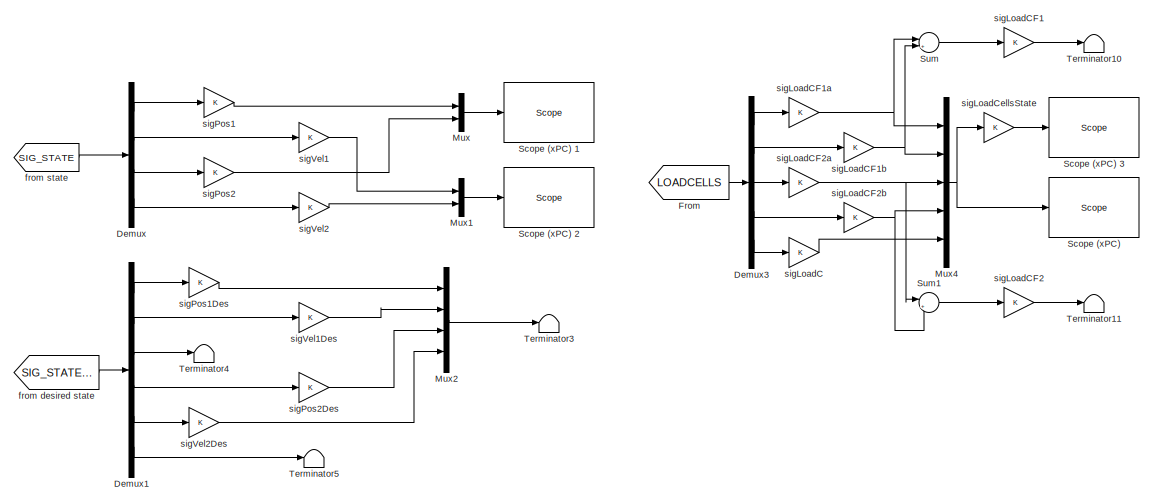
[diagram: signals - part 1/3, top center region]
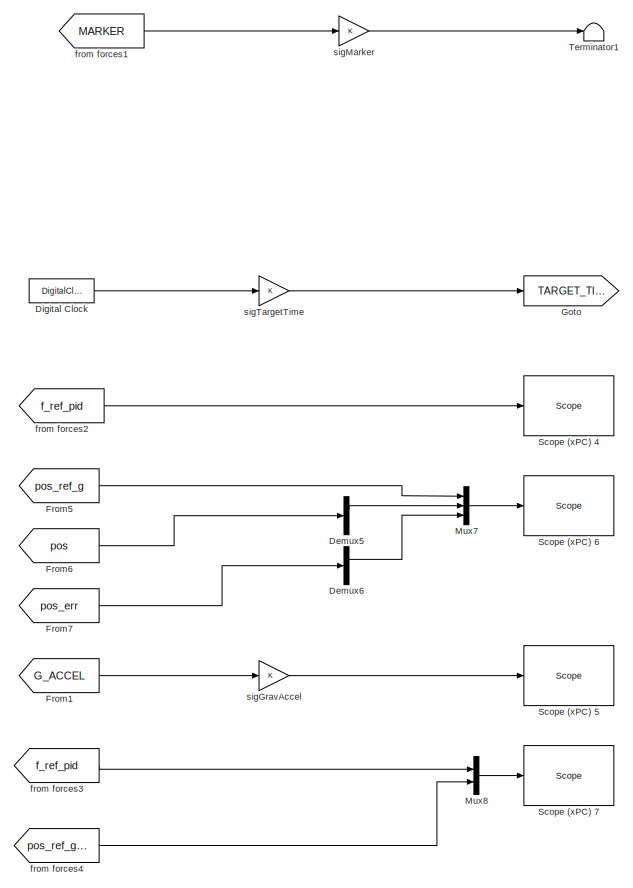
[diagram: signals - part 2/3, bottom left region]
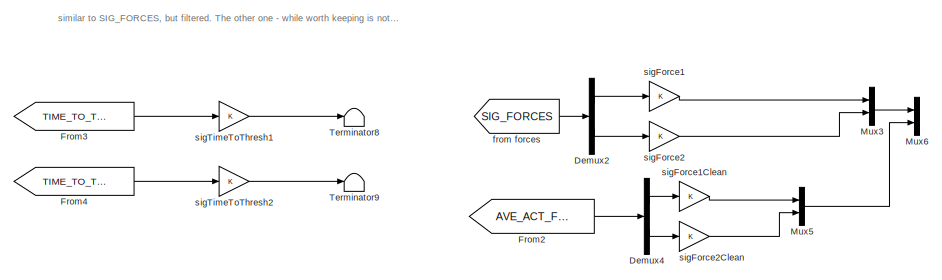
[diagram: signals - part 3/3, middle right region]
BLOCK [SubSystem] signals
  Ports = []
  RequestExecContextInheritance = off
  SID = 355
  Variant = off
BLOCK [Demux] signals/Demux
  Commented = on
  DisplayOption = bar
  Ports = [1, 4]
  SID = 356
BLOCK [Demux] signals/Demux1
  Commented = on
  DisplayOption = bar
  Outputs = 6
  Ports = [1, 6]
  SID = 366
BLOCK [Demux] signals/Demux2
  Commented = on
  DisplayOption = bar
  Outputs = 2
  Ports = [1, 2]
  SID = 379
BLOCK [Demux] signals/Demux3
  Commented = on
  DisplayOption = bar
  Outputs = 5
  Ports = [1, 5]
  SID = 1270
BLOCK [Demux] signals/Demux4
  Commented = on
  DisplayOption = bar
  Outputs = 2
  Ports = [1, 2]
  SID = 1561
BLOCK [Demux] signals/Demux5
  DisplayOption = bar
  Outputs = 2
  Ports = [1, 2]
  SID = 2720
BLOCK [Demux] signals/Demux6
  DisplayOption = bar
  Outputs = 2
  Ports = [1, 2]
  SID = 2721
BLOCK [DigitalClock] signals/Digital Clock
  SID = 384
  SampleTime = .001
BLOCK [From] signals/From
  Commented = on
  GotoTag = LOADCELLS
  SID = 1269
  TagVisibility = global
BLOCK [From] signals/From1
  GotoTag = G_ACCEL
  SID = 1520
  TagVisibility = global
BLOCK [From] signals/From2
  Commented = on
  GotoTag = AVE_ACT_FORCE
  SID = 1560
  TagVisibility = global
BLOCK [From] signals/From3
  Commented = on
  GotoTag = TIME_TO_THRESH_1
  SID = 2153
BLOCK [From] signals/From4
  Commented = on
  GotoTag = TIME_TO_THRESH_2
  SID = 2209
BLOCK [From] signals/From5
  GotoTag = pos_ref_g
  SID = 2702
  TagVisibility = global
BLOCK [From] signals/From6
  GotoTag = pos
  SID = 2704
  TagVisibility = global
BLOCK [From] signals/From7
  GotoTag = pos_err
  SID = 2705
  TagVisibility = global
BLOCK [Goto] signals/Goto
  GotoTag = TARGET_TIME
  SID = 387
  TagVisibility = global
BLOCK [Mux] signals/Mux
  Commented = on
  DisplayOption = bar
  Inputs = 2
  Ports = [2, 1]
  SID = 213
BLOCK [Mux] signals/Mux1
  Commented = on
  DisplayOption = bar
  Inputs = 2
  Ports = [2, 1]
  SID = 214
BLOCK [Mux] signals/Mux2
  Commented = on
  DisplayOption = bar
  Ports = [4, 1]
  SID = 376
BLOCK [Mux] signals/Mux3
  Commented = on
  DisplayOption = bar
  Inputs = 2
  Ports = [2, 1]
  SID = 382
BLOCK [Mux] signals/Mux4
  Commented = on
  DisplayOption = bar
  Inputs = 5
  Ports = [5, 1]
  SID = 1277
BLOCK [Mux] signals/Mux5
  Commented = on
  DisplayOption = bar
  Inputs = 2
  Ports = [2, 1]
  SID = 1562
BLOCK [Mux] signals/Mux6
  Commented = on
  DisplayOption = bar
  Inputs = 2
  Ports = [2, 1]
  SID = 2701
BLOCK [Mux] signals/Mux7
  DisplayOption = bar
  Inputs = 3
  Ports = [3, 1]
  SID = 2703
BLOCK [Mux] signals/Mux8
  DisplayOption = bar
  Inputs = 2
  Ports = [2, 1]
  SID = 2761
BLOCK [Reference] signals/Scope (xPC)   REF=slrtlib/Displays and\nLogging/Scope 
  Commented = on
  Ports = [1]
  SID = 245
  SourceBlock = slrtlib/Displays and\nLogging/Scope
  SourceType = xpcscopeblock
  autorestart = off
  autostart = on
  dynamicfilemode = off
  filename = data.dat
  formatstr = '%15.6f'
  grid = on
  interleave = 1
  maxwritefilesize = 512*1024^2
  mode = Lazy
  noprepostsamples = 0
  nosamples = 500
  scopeno = 5
  scopetype = Target
  triggerlevel = 0.0
  triggermode = FreeRun
  triggersample = 0
  triggerscope = 1
  triggersignal = 1
  triggerslope = Either
  trigsignalfromport = off
  viewmode = Graphical redraw
  writesize = 512
  ylimits = [-3,3]
BLOCK [Reference] signals/Scope (xPC) 1  REF=slrtlib/Displays and\nLogging/Scope 
  Commented = on
  Ports = [1]
  SID = 208
  SourceBlock = slrtlib/Displays and\nLogging/Scope
  SourceType = xpcscopeblock
  autorestart = off
  autostart = on
  dynamicfilemode = off
  filename = data.dat
  formatstr = '%15.6f'
  grid = on
  interleave = 1
  maxwritefilesize = 512*1024^2
  mode = Lazy
  noprepostsamples = 0
  nosamples = 500
  scopeno = 1
  scopetype = Target
  triggerlevel = 0.0
  triggermode = FreeRun
  triggersample = 0
  triggerscope = 1
  triggersignal = 1
  triggerslope = Either
  trigsignalfromport = off
  viewmode = Graphical redraw
  writesize = 512
  ylimits = [0,1.1]
BLOCK [Reference] signals/Scope (xPC) 2  REF=slrtlib/Displays and\nLogging/Scope 
  Commented = on
  Ports = [1]
  SID = 215
  SourceBlock = slrtlib/Displays and\nLogging/Scope
  SourceType = xpcscopeblock
  autorestart = off
  autostart = on
  dynamicfilemode = off
  filename = data.dat
  formatstr = '%15.6f'
  grid = on
  interleave = 1
  maxwritefilesize = 512*1024^2
  mode = Lazy
  noprepostsamples = 0
  nosamples = 500
  scopeno = 2
  scopetype = Target
  triggerlevel = 0.0
  triggermode = FreeRun
  triggersample = 0
  triggerscope = 1
  triggersignal = 1
  triggerslope = Either
  trigsignalfromport = off
  viewmode = Graphical redraw
  writesize = 512
  ylimits = [-10,10]
BLOCK [Reference] signals/Scope (xPC) 3  REF=slrtlib/Displays and\nLogging/Scope 
  Commented = on
  Ports = [1]
  SID = 2660
  SourceBlock = slrtlib/Displays and\nLogging/Scope
  SourceType = xpcscopeblock
  autorestart = off
  autostart = on
  dynamicfilemode = off
  filename = fLogData.dat
  formatstr = '%15.6f'
  grid = on
  interleave = 1
  maxwritefilesize = 512*1024^2
  mode = Lazy
  noprepostsamples = 0
  nosamples = 5000
  scopeno = 4
  scopetype = File
  triggerlevel = 0.0
  triggermode = FreeRun
  triggersample = 0
  triggerscope = 1
  triggersignal = 1
  triggerslope = Either
  trigsignalfromport = off
  viewmode = Graphical redraw
  writesize = 512
  ylimits = [0,0]
BLOCK [Reference] signals/Scope (xPC) 4  REF=slrtlib/Displays and\nLogging/Scope 
  Ports = [1]
  SID = 2696
  SourceBlock = slrtlib/Displays and\nLogging/Scope
  SourceType = xpcscopeblock
  autorestart = off
  autostart = on
  dynamicfilemode = off
  filename = data.dat
  formatstr = '%15.6f'
  grid = on
  interleave = 1
  maxwritefilesize = 512*1024^2
  mode = Lazy
  noprepostsamples = 0
  nosamples = 2000
  scopeno = 1
  scopetype = Target
  triggerlevel = 0.0
  triggermode = FreeRun
  triggersample = 0
  triggerscope = 1
  triggersignal = 1
  triggerslope = Either
  trigsignalfromport = off
  viewmode = Graphical rolling
  writesize = 512
  ylimits = [-1,1]
BLOCK [Reference] signals/Scope (xPC) 5  REF=slrtlib/Displays and\nLogging/Scope 
  Ports = [1]
  SID = 2699
  SourceBlock = slrtlib/Displays and\nLogging/Scope
  SourceType = xpcscopeblock
  autorestart = off
  autostart = on
  dynamicfilemode = off
  filename = data.dat
  formatstr = '%15.6f'
  grid = on
  interleave = 1
  maxwritefilesize = 512*1024^2
  mode = Lazy
  noprepostsamples = 0
  nosamples = 2000
  scopeno = 2
  scopetype = Target
  triggerlevel = 0.0
  triggermode = FreeRun
  triggersample = 0
  triggerscope = 1
  triggersignal = 1
  triggerslope = Either
  trigsignalfromport = off
  viewmode = Graphical rolling
  writesize = 512
  ylimits = [-1,1]
BLOCK [Reference] signals/Scope (xPC) 6  REF=slrtlib/Displays and\nLogging/Scope 
  Ports = [1]
  SID = 2700
  SourceBlock = slrtlib/Displays and\nLogging/Scope
  SourceType = xpcscopeblock
  autorestart = off
  autostart = on
  dynamicfilemode = off
  filename = data.dat
  formatstr = '%15.6f'
  grid = on
  interleave = 1
  maxwritefilesize = 512*1024^2
  mode = Lazy
  noprepostsamples = 0
  nosamples = 2000
  scopeno = 4
  scopetype = Target
  triggerlevel = 0.0
  triggermode = FreeRun
  triggersample = 0
  triggerscope = 1
  triggersignal = 1
  triggerslope = Either
  trigsignalfromport = off
  viewmode = Graphical rolling
  writesize = 512
  ylimits = [0,1]
BLOCK [Reference] signals/Scope (xPC) 7  REF=slrtlib/Displays and\nLogging/Scope 
  Ports = [1]
  SID = 1517
  SourceBlock = slrtlib/Displays and\nLogging/Scope
  SourceType = xpcscopeblock
  autorestart = off
  autostart = on
  dynamicfilemode = off
  filename = data.dat
  formatstr = '%15.6f'
  grid = on
  interleave = 1
  maxwritefilesize = 512*1024^2
  mode = Lazy
  noprepostsamples = 0
  nosamples = 10
  scopeno = 3
  scopetype = Target
  triggerlevel = 0.0
  triggermode = FreeRun
  triggersample = 0
  triggerscope = 1
  triggersignal = 1
  triggerslope = Either
  trigsignalfromport = off
  viewmode = Numerical
  writesize = 512
  ylimits = [.03,.1]
BLOCK [Sum] signals/Sum
  Commented = on
  IconShape = round
  InputSameDT = off
  Inputs = |++
  OutDataTypeStr = Inherit: Inherit via internal rule
  Ports = [2, 1]
  SID = 2664
  SaturateOnIntegerOverflow = off
BLOCK [Sum] signals/Sum1
  Commented = on
  IconShape = round
  InputSameDT = off
  Inputs = |++
  OutDataTypeStr = Inherit: Inherit via internal rule
  Ports = [2, 1]
  SID = 2665
  SaturateOnIntegerOverflow = off
BLOCK [Terminator] signals/Terminator1
  Commented = on
  SID = 1254
BLOCK [Terminator] signals/Terminator10
  Commented = on
  SID = 2666
BLOCK [Terminator] signals/Terminator11
  Commented = on
  SID = 2667
BLOCK [Terminator] signals/Terminator3
  Commented = on
  SID = 1383
BLOCK [Terminator] signals/Terminator4
  Commented = on
  SID = 373
BLOCK [Terminator] signals/Terminator5
  Commented = on
  SID = 374
BLOCK [Terminator] signals/Terminator8
  Commented = on
  SID = 2137
BLOCK [Terminator] signals/Terminator9
  Commented = on
  SID = 2210
BLOCK [From] signals/from desired state
  Commented = on
  GotoTag = SIG_STATEDES
  SID = 365
BLOCK [From] signals/from forces
  Commented = on
  GotoTag = SIG_FORCES
  SID = 378
  TagVisibility = global
BLOCK [From] signals/from forces1
  Commented = on
  GotoTag = MARKER
  SID = 1252
  TagVisibility = global
BLOCK [From] signals/from forces2
  GotoTag = f_ref_pid
  SID = 2707
  TagVisibility = global
BLOCK [From] signals/from forces3
  GotoTag = f_ref_pid
  SID = 2723
  TagVisibility = global
BLOCK [From] signals/from forces4
  GotoTag = pos_ref_g_2
  SID = 2762
  TagVisibility = global
BLOCK [From] signals/from state
  Commented = on
  GotoTag = SIG_STATE
  SID = 352
  TagVisibility = global
BLOCK [Gain] signals/sigForce1
  Commented = on
  OutDataTypeStr = Inherit: Inherit via internal rule
  ParamDataTypeStr = Inherit: Inherit via internal rule
  SID = 380
  SaturateOnIntegerOverflow = off
BLOCK [Gain] signals/sigForce1Clean
  Commented = on
  OutDataTypeStr = Inherit: Inherit via internal rule
  ParamDataTypeStr = Inherit: Inherit via internal rule
  SID = 1564
  SaturateOnIntegerOverflow = off
BLOCK [Gain] signals/sigForce2
  Commented = on
  OutDataTypeStr = Inherit: Inherit via internal rule
  ParamDataTypeStr = Inherit: Inherit via internal rule
  SID = 381
  SaturateOnIntegerOverflow = off
BLOCK [Gain] signals/sigForce2Clean
  Commented = on
  OutDataTypeStr = Inherit: Inherit via internal rule
  ParamDataTypeStr = Inherit: Inherit via internal rule
  SID = 1565
  SaturateOnIntegerOverflow = off
BLOCK [Gain] signals/sigGravAccel
  OutDataTypeStr = Inherit: Inherit via internal rule
  ParamDataTypeStr = Inherit: Inherit via internal rule
  SID = 1519
  SaturateOnIntegerOverflow = off
BLOCK [Gain] signals/sigLoadC
  Commented = on
  OutDataTypeStr = Inherit: Inherit via internal rule
  ParamDataTypeStr = Inherit: Inherit via internal rule
  SID = 1275
  SaturateOnIntegerOverflow = off
BLOCK [Gain] signals/sigLoadCF1
  Commented = on
  OutDataTypeStr = Inherit: Inherit via internal rule
  ParamDataTypeStr = Inherit: Inherit via internal rule
  SID = 2662
  SaturateOnIntegerOverflow = off
BLOCK [Gain] signals/sigLoadCF1a
  Commented = on
  OutDataTypeStr = Inherit: Inherit via internal rule
  ParamDataTypeStr = Inherit: Inherit via internal rule
  SID = 1271
  SaturateOnIntegerOverflow = off
BLOCK [Gain] signals/sigLoadCF1b
  Commented = on
  OutDataTypeStr = Inherit: Inherit via internal rule
  ParamDataTypeStr = Inherit: Inherit via internal rule
  SID = 1272
  SaturateOnIntegerOverflow = off
BLOCK [Gain] signals/sigLoadCF2
  Commented = on
  OutDataTypeStr = Inherit: Inherit via internal rule
  ParamDataTypeStr = Inherit: Inherit via internal rule
  SID = 2663
  SaturateOnIntegerOverflow = off
BLOCK [Gain] signals/sigLoadCF2a
  Commented = on
  OutDataTypeStr = Inherit: Inherit via internal rule
  ParamDataTypeStr = Inherit: Inherit via internal rule
  SID = 1273
  SaturateOnIntegerOverflow = off
BLOCK [Gain] signals/sigLoadCF2b
  Commented = on
  OutDataTypeStr = Inherit: Inherit via internal rule
  ParamDataTypeStr = Inherit: Inherit via internal rule
  SID = 1274
  SaturateOnIntegerOverflow = off
BLOCK [Gain] signals/sigLoadCellsState
  Commented = on
  OutDataTypeStr = Inherit: Inherit via internal rule
  ParamDataTypeStr = Inherit: Inherit via internal rule
  SID = 2661
  SaturateOnIntegerOverflow = off
BLOCK [Gain] signals/sigMarker
  Commented = on
  OutDataTypeStr = Inherit: Inherit via internal rule
  ParamDataTypeStr = Inherit: Inherit via internal rule
  SID = 1253
  SaturateOnIntegerOverflow = off
BLOCK [Gain] signals/sigPos1
  Commented = on
  OutDataTypeStr = Inherit: Inherit via internal rule
  ParamDataTypeStr = Inherit: Inherit via internal rule
  SID = 353
  SaturateOnIntegerOverflow = off
BLOCK [Gain] signals/sigPos1Des
  Commented = on
  OutDataTypeStr = Inherit: Inherit via internal rule
  ParamDataTypeStr = Inherit: Inherit via internal rule
  SID = 367
  SaturateOnIntegerOverflow = off
BLOCK [Gain] signals/sigPos2
  Commented = on
  OutDataTypeStr = Inherit: Inherit via internal rule
  ParamDataTypeStr = Inherit: Inherit via internal rule
  SID = 358
  SaturateOnIntegerOverflow = off
BLOCK [Gain] signals/sigPos2Des
  Commented = on
  OutDataTypeStr = Inherit: Inherit via internal rule
  ParamDataTypeStr = Inherit: Inherit via internal rule
  SID = 370
  SaturateOnIntegerOverflow = off
BLOCK [Gain] signals/sigTargetTime
  OutDataTypeStr = Inherit: Inherit via internal rule
  ParamDataTypeStr = Inherit: Inherit via internal rule
  SID = 385
  SaturateOnIntegerOverflow = off
BLOCK [Gain] signals/sigTimeToThresh1
  Commented = on
  OutDataTypeStr = Inherit: Inherit via internal rule
  ParamDataTypeStr = Inherit: Inherit via internal rule
  SID = 2138
  SaturateOnIntegerOverflow = off
BLOCK [Gain] signals/sigTimeToThresh2
  Commented = on
  OutDataTypeStr = Inherit: Inherit via internal rule
  ParamDataTypeStr = Inherit: Inherit via internal rule
  SID = 2211
  SaturateOnIntegerOverflow = off
BLOCK [Gain] signals/sigVel1
  Commented = on
  OutDataTypeStr = Inherit: Inherit via internal rule
  ParamDataTypeStr = Inherit: Inherit via internal rule
  SID = 357
  SaturateOnIntegerOverflow = off
BLOCK [Gain] signals/sigVel1Des
  Commented = on
  OutDataTypeStr = Inherit: Inherit via internal rule
  ParamDataTypeStr = Inherit: Inherit via internal rule
  SID = 368
  SaturateOnIntegerOverflow = off
BLOCK [Gain] signals/sigVel2
  Commented = on
  OutDataTypeStr = Inherit: Inherit via internal rule
  ParamDataTypeStr = Inherit: Inherit via internal rule
  SID = 359
  SaturateOnIntegerOverflow = off
BLOCK [Gain] signals/sigVel2Des
  Commented = on
  OutDataTypeStr = Inherit: Inherit via internal rule
  ParamDataTypeStr = Inherit: Inherit via internal rule
  SID = 371
  SaturateOnIntegerOverflow = off
BLOCK [Constant] standby-OFF
  SID = 2787
  Value = 0
BLOCK [Constant] standby-ON
  SID = 2788
ANNOTATION Robot: Note that this is NOT suitable for any type \nof feedback - it is just a parameter for the game
ANNOTATION Robot: calibrated such that full extension is equal to 1. To calibrate, just read the value when at full extension and divide by it.
ANNOTATION parameters: used for variables that we do not want to change all of a sudden (like gains).
ANNOTATION signals: similar to SIG_FORCES, but filtered. The other one - while worth keeping is not clean enough to use in the game.
LINE Compare\nTo Constant:1 -> Data Type Conversion:1
LINE Constant3:1 -> MATLAB Function:4
LINE Data Type Conversion:1 -> Discrete-Time\nIntegrator:2
LINE Discrete-Time\nIntegrator:1 -> MATLAB Function:3
LINE From1:1 -> MATLAB Function:5
LINE From2:1 -> MATLAB Function:6
LINE From3:1 -> Discrete-Time\nIntegrator:1
LINE From:1 -> Compare\nTo Constant:1
LINE HL Controller/Constant2:1 -> HL Controller/Multiport\nSwitch:2
LINE HL Controller/Constant:1 -> HL Controller/p_ref_b:1
LINE HL Controller/Delay1:1 -> HL Controller/Multiport\nSwitch:1
LINE HL Controller/Delay:1 -> HL Controller/Demux:1
LINE HL Controller/Demux:2 -> HL Controller/Discrete Filter:1
LINE HL Controller/Discrete Filter:1 -> HL Controller/Gain1:1
NET HL Controller/Discrete-Time\nIntegrator:1 -> HL Controller/Goto2:1, HL Controller/Multiport\nSwitch:3
LINE HL Controller/Gain1:1 -> HL Controller/Discrete-Time\nIntegrator:1
NET HL Controller/Manual Switch3:1 -> HL Controller/Delay1:1, HL Controller/Discrete-Time\nIntegrator:2
NET HL Controller/Multiport\nSwitch:1 -> HL Controller/Goto1:1, HL Controller/p_ref_g:1
LINE HL Controller/Switch_Off:1 -> HL Controller/Manual Switch3:1
LINE HL Controller/Switch_On:1 -> HL Controller/Manual Switch3:2
LINE HL Controller/from forces2:1 -> HL Controller/Delay:1
LINE HL Controller:1 -> Mux:1
LINE HL Controller:2 -> Mux:2
LINE LL Controller/Discrete PID Controller:1 -> LL Controller/Goto3:1
LINE LL Controller/From1:1 -> LL Controller/Saturation\nDynamic:1
LINE LL Controller/From2:1 -> LL Controller/Gain:1
LINE LL Controller/From3:1 -> LL Controller/Mux:2
LINE LL Controller/From:1 -> LL Controller/Mux:1
LINE LL Controller/Gain:1 -> LL Controller/Saturation\nDynamic:3
LINE LL Controller/Mux:1 -> LL Controller/Saturation\nDynamic:2
LINE LL Controller/Saturation\nDynamic:1 -> LL Controller/Forces:1
NET LL Controller/Sum:1 -> LL Controller/Discrete PID Controller:1, LL Controller/Goto2:1
LINE LL Controller/pos_meas:1 -> LL Controller/Sum:2
LINE LL Controller/pos_ref:1 -> LL Controller/Sum:1
LINE LL Controller:1 -> Robot:1
LINE MATLAB Function/ Demux :1 -> MATLAB Function/ Terminator :1
LINE MATLAB Function/ SFunction :1 -> MATLAB Function/ Demux :1
LINE MATLAB Function/ SFunction :2 -> MATLAB Function/state:1
LINE MATLAB Function/ SFunction :3 -> MATLAB Function/f_ref1:1
LINE MATLAB Function/ SFunction :4 -> MATLAB Function/f_ref2:1
LINE MATLAB Function/ SFunction :5 -> MATLAB Function/ramp_switch:1
LINE MATLAB Function/ SFunction :6 -> MATLAB Function/f_ref_lim:1
LINE MATLAB Function/k_ramp:1 -> MATLAB Function/ SFunction :4
LINE MATLAB Function/main_switch:1 -> MATLAB Function/ SFunction :2
LINE MATLAB Function/state :1 -> MATLAB Function/ SFunction :1
LINE MATLAB Function/t_ramp:1 -> MATLAB Function/ SFunction :3
LINE MATLAB Function/vel_meas_1:1 -> MATLAB Function/ SFunction :5
LINE MATLAB Function/vel_meas_2:1 -> MATLAB Function/ SFunction :6
NET MATLAB Function:1 -> Goto2:1, Unit Delay:1
LINE MATLAB Function:2 -> Goto3:1
LINE MATLAB Function:3 -> Goto5:1
LINE MATLAB Function:4 -> Goto1:1
LINE MATLAB Function:5 -> Goto4:1
LINE Main Switch:1 -> MATLAB Function:2
LINE Mux:1 -> LL Controller:1
NET Robot/Demux1:1 -> Robot/Discrete Derivative:1, Robot/Mux3:1
NET Robot/Demux1:2 -> Robot/Discrete Derivative1:1, Robot/Mux3:2
NET Robot/Demux:1 -> Robot/account for handedness:1, Robot/filtered force output:1
NET Robot/Demux:2 -> Robot/account for handedness:2, Robot/filtered force output:2
LINE Robot/Discrete Derivative1:1 -> Robot/Goto6:1
LINE Robot/Discrete Derivative:1 -> Robot/Goto5:1
LINE Robot/Forces:1 -> Robot/Demux:1
LINE Robot/Gain1:1 -> Robot/Mux:2
LINE Robot/Gain:1 -> Robot/Mux:1
LINE Robot/Mux1:1 -> Robot/account for handedness force:1
NET Robot/Mux3:1 -> Robot/Goto2:1, Robot/pos_meas:1
LINE Robot/Mux:1 -> Robot/Demux1:1
LINE Robot/PCI 6221 ENC 1:1 -> Robot/account for handedness1:2
LINE Robot/PCI 6221 ENC :1 -> Robot/account for handedness1:1
LINE Robot/PCI-6221 AD1:1 -> Robot/account for handedness2:1
LINE Robot/PCI-6221 AD1:2 -> Robot/gravDir:1
LINE Robot/PCI-6221 AD1:3 -> Robot/account for handedness2:2
LINE Robot/PCI-6221 AD1:4 -> Robot/Mux1:1
LINE Robot/PCI-6221 AD1:5 -> Robot/Mux1:2
LINE Robot/PCI-6221 AD1:6 -> Robot/Mux1:3
LINE Robot/PCI-6221 AD1:7 -> Robot/Mux1:4
LINE Robot/PCI-6221 AD1:8 -> Robot/Mux1:5
LINE Robot/account for handedness force/From:1 -> Robot/account for handedness force/MATLAB Function:2
LINE Robot/account for handedness force/In1:1 -> Robot/account for handedness force/MATLAB Function:1
LINE Robot/account for handedness force/MATLAB Function/ Demux :1 -> Robot/account for handedness force/MATLAB Function/ Terminator :1
LINE Robot/account for handedness force/MATLAB Function/ SFunction :1 -> Robot/account for handedness force/MATLAB Function/ Demux :1
LINE Robot/account for handedness force/MATLAB Function/ SFunction :2 -> Robot/account for handedness force/MATLAB Function/output:1
LINE Robot/account for handedness force/MATLAB Function/inp1:1 -> Robot/account for handedness force/MATLAB Function/ SFunction :1
LINE Robot/account for handedness force/MATLAB Function/leftyMode:1 -> Robot/account for handedness force/MATLAB Function/ SFunction :2
LINE Robot/account for handedness force/MATLAB Function:1 -> Robot/account for handedness force/Out1:1
LINE Robot/account for handedness force:1 -> Robot/Goto:1
LINE Robot/account for handedness/From:1 -> Robot/account for handedness/MATLAB Function:3
LINE Robot/account for handedness/In1:1 -> Robot/account for handedness/MATLAB Function:1
LINE Robot/account for handedness/In2:1 -> Robot/account for handedness/MATLAB Function:2
LINE Robot/account for handedness/MATLAB Function/ Demux :1 -> Robot/account for handedness/MATLAB Function/ Terminator :1
LINE Robot/account for handedness/MATLAB Function/ SFunction :1 -> Robot/account for handedness/MATLAB Function/ Demux :1
LINE Robot/account for handedness/MATLAB Function/ SFunction :2 -> Robot/account for handedness/MATLAB Function/output1:1
LINE Robot/account for handedness/MATLAB Function/ SFunction :3 -> Robot/account for handedness/MATLAB Function/output2:1
LINE Robot/account for handedness/MATLAB Function/input1:1 -> Robot/account for handedness/MATLAB Function/ SFunction :1
LINE Robot/account for handedness/MATLAB Function/input2:1 -> Robot/account for handedness/MATLAB Function/ SFunction :2
LINE Robot/account for handedness/MATLAB Function/leftyMode:1 -> Robot/account for handedness/MATLAB Function/ SFunction :3
LINE Robot/account for handedness/MATLAB Function:1 -> Robot/account for handedness/Out1:1
LINE Robot/account for handedness/MATLAB Function:2 -> Robot/account for handedness/Out2:1
LINE Robot/account for handedness1/From:1 -> Robot/account for handedness1/MATLAB Function:3
LINE Robot/account for handedness1/In1:1 -> Robot/account for handedness1/MATLAB Function:1
LINE Robot/account for handedness1/In2:1 -> Robot/account for handedness1/MATLAB Function:2
LINE Robot/account for handedness1/MATLAB Function/ Demux :1 -> Robot/account for handedness1/MATLAB Function/ Terminator :1
LINE Robot/account for handedness1/MATLAB Function/ SFunction :1 -> Robot/account for handedness1/MATLAB Function/ Demux :1
LINE Robot/account for handedness1/MATLAB Function/ SFunction :2 -> Robot/account for handedness1/MATLAB Function/output1:1
LINE Robot/account for handedness1/MATLAB Function/ SFunction :3 -> Robot/account for handedness1/MATLAB Function/output2:1
LINE Robot/account for handedness1/MATLAB Function/input1:1 -> Robot/account for handedness1/MATLAB Function/ SFunction :1
LINE Robot/account for handedness1/MATLAB Function/input2:1 -> Robot/account for handedness1/MATLAB Function/ SFunction :2
LINE Robot/account for handedness1/MATLAB Function/leftyMode:1 -> Robot/account for handedness1/MATLAB Function/ SFunction :3
LINE Robot/account for handedness1/MATLAB Function:1 -> Robot/account for handedness1/Out1:1
LINE Robot/account for handedness1/MATLAB Function:2 -> Robot/account for handedness1/Out2:1
LINE Robot/account for handedness1:1 -> Robot/get offsets:1
LINE Robot/account for handedness1:2 -> Robot/get offsets:2
LINE Robot/account for handedness2/From:1 -> Robot/account for handedness2/MATLAB Function:3
LINE Robot/account for handedness2/In1:1 -> Robot/account for handedness2/MATLAB Function:1
LINE Robot/account for handedness2/In2:1 -> Robot/account for handedness2/MATLAB Function:2
LINE Robot/account for handedness2/MATLAB Function/ Demux :1 -> Robot/account for handedness2/MATLAB Function/ Terminator :1
LINE Robot/account for handedness2/MATLAB Function/ SFunction :1 -> Robot/account for handedness2/MATLAB Function/ Demux :1
LINE Robot/account for handedness2/MATLAB Function/ SFunction :2 -> Robot/account for handedness2/MATLAB Function/output1:1
LINE Robot/account for handedness2/MATLAB Function/ SFunction :3 -> Robot/account for handedness2/MATLAB Function/output2:1
LINE Robot/account for handedness2/MATLAB Function/input1:1 -> Robot/account for handedness2/MATLAB Function/ SFunction :1
LINE Robot/account for handedness2/MATLAB Function/input2:1 -> Robot/account for handedness2/MATLAB Function/ SFunction :2
LINE Robot/account for handedness2/MATLAB Function/leftyMode:1 -> Robot/account for handedness2/MATLAB Function/ SFunction :3
LINE Robot/account for handedness2/MATLAB Function:1 -> Robot/account for handedness2/Out1:1
LINE Robot/account for handedness2/MATLAB Function:2 -> Robot/account for handedness2/Out2:1
LINE Robot/account for handedness2:1 -> Robot/Mux:3
LINE Robot/account for handedness2:2 -> Robot/Mux:4
LINE Robot/account for handedness:1 -> Robot/PCI-6221 DA:1
LINE Robot/account for handedness:2 -> Robot/PCI-6221 DA:2
LINE Robot/filtered force output/In1:1 -> Robot/filtered force output/Low Pass 100 Hz:1
LINE Robot/filtered force output/In2:1 -> Robot/filtered force output/Low Pass 100 Hz1:1
LINE Robot/filtered force output/Low Pass 100 Hz1:1 -> Robot/filtered force output/Memory1:1
LINE Robot/filtered force output/Low Pass 100 Hz:1 -> Robot/filtered force output/Memory:1
LINE Robot/filtered force output/Memory1:1 -> Robot/filtered force output/Mux2:2
LINE Robot/filtered force output/Memory:1 -> Robot/filtered force output/Mux2:1
LINE Robot/filtered force output/Mux2:1 -> Robot/filtered force output/Out1:1
LINE Robot/filtered force output:1 -> Robot/Goto1:1
LINE Robot/get offsets/Digital Clock:1 -> Robot/get offsets/MATLAB Function:3
LINE Robot/get offsets/MATLAB Function/ Demux :1 -> Robot/get offsets/MATLAB Function/ Terminator :1
LINE Robot/get offsets/MATLAB Function/ SFunction :1 -> Robot/get offsets/MATLAB Function/ Demux :1
LINE Robot/get offsets/MATLAB Function/ SFunction :2 -> Robot/get offsets/MATLAB Function/encoder1:1
LINE Robot/get offsets/MATLAB Function/ SFunction :3 -> Robot/get offsets/MATLAB Function/encoder2:1
LINE Robot/get offsets/MATLAB Function/ SFunction :4 -> Robot/get offsets/MATLAB Function/summedVals:1
LINE Robot/get offsets/MATLAB Function/ SFunction :5 -> Robot/get offsets/MATLAB Function/nSamples:1
LINE Robot/get offsets/MATLAB Function/enc1_:1 -> Robot/get offsets/MATLAB Function/ SFunction :1
LINE Robot/get offsets/MATLAB Function/enc2_:1 -> Robot/get offsets/MATLAB Function/ SFunction :2
LINE Robot/get offsets/MATLAB Function/nSamples_:1 -> Robot/get offsets/MATLAB Function/ SFunction :5
LINE Robot/get offsets/MATLAB Function/summedVals_:1 -> Robot/get offsets/MATLAB Function/ SFunction :4
LINE Robot/get offsets/MATLAB Function/time:1 -> Robot/get offsets/MATLAB Function/ SFunction :3
LINE Robot/get offsets/MATLAB Function:1 -> Robot/get offsets/enc1:1
LINE Robot/get offsets/MATLAB Function:2 -> Robot/get offsets/enc2:1
LINE Robot/get offsets/MATLAB Function:3 -> Robot/get offsets/Memory1:1
LINE Robot/get offsets/MATLAB Function:4 -> Robot/get offsets/Memory:1
LINE Robot/get offsets/Memory1:1 -> Robot/get offsets/MATLAB Function:4
LINE Robot/get offsets/Memory:1 -> Robot/get offsets/MATLAB Function:5
LINE Robot/get offsets/enc1_:1 -> Robot/get offsets/MATLAB Function:1
LINE Robot/get offsets/enc2_:1 -> Robot/get offsets/MATLAB Function:2
LINE Robot/get offsets:1 -> Robot/Gain:1
LINE Robot/get offsets:2 -> Robot/Gain1:1
LINE Robot/gravDir/Constant:1 -> Robot/gravDir/Sum:2
LINE Robot/gravDir/In1:1 -> Robot/gravDir/Sum:1
LINE Robot/gravDir/Sum:1 -> Robot/gravDir/gain:1
LINE Robot/gravDir/gain:1 -> Robot/gravDir/Goto:1
LINE Robot:1 -> LL Controller:2
LINE Unit Delay:1 -> MATLAB Function:1
LINE parameters/Mux1:1 -> parameters/Goto2:1
LINE parameters/Mux2:1 -> parameters/Goto13:1
LINE parameters/Mux:1 -> parameters/Goto1:1
LINE parameters/Rounding Function:1 -> parameters/Saturation1:1
LINE parameters/Saturation1:1 -> parameters/Goto5:1
LINE parameters/Saturation2:1 -> parameters/Goto6:1
LINE parameters/Saturation:1 -> parameters/Goto4:1
LINE parameters/gain transition/From:1 -> parameters/gain transition/gainramp:1
LINE parameters/gain transition/Memory:1 -> parameters/gain transition/gainramp:3
LINE parameters/gain transition/gainramp/ Demux :1 -> parameters/gain transition/gainramp/ Terminator :1
LINE parameters/gain transition/gainramp/ SFunction :1 -> parameters/gain transition/gainramp/ Demux :1
LINE parameters/gain transition/gainramp/ SFunction :2 -> parameters/gain transition/gainramp/val:1
LINE parameters/gain transition/gainramp/ SFunction :3 -> parameters/gain transition/gainramp/state1:1
LINE parameters/gain transition/gainramp/state:1 -> parameters/gain transition/gainramp/ SFunction :3
LINE parameters/gain transition/gainramp/tr:1 -> parameters/gain transition/gainramp/ SFunction :1
LINE parameters/gain transition/gainramp/valD:1 -> parameters/gain transition/gainramp/ SFunction :2
LINE parameters/gain transition/gainramp:1 -> parameters/gain transition/val:1
LINE parameters/gain transition/gainramp:2 -> parameters/gain transition/Memory:1
LINE parameters/gain transition/targ:1 -> parameters/gain transition/gainramp:2
LINE parameters/gain transition1/From:1 -> parameters/gain transition1/gainramp:1
LINE parameters/gain transition1/Memory:1 -> parameters/gain transition1/gainramp:3
LINE parameters/gain transition1/gainramp/ Demux :1 -> parameters/gain transition1/gainramp/ Terminator :1
LINE parameters/gain transition1/gainramp/ SFunction :1 -> parameters/gain transition1/gainramp/ Demux :1
LINE parameters/gain transition1/gainramp/ SFunction :2 -> parameters/gain transition1/gainramp/val:1
LINE parameters/gain transition1/gainramp/ SFunction :3 -> parameters/gain transition1/gainramp/state1:1
LINE parameters/gain transition1/gainramp/state:1 -> parameters/gain transition1/gainramp/ SFunction :3
LINE parameters/gain transition1/gainramp/tr:1 -> parameters/gain transition1/gainramp/ SFunction :1
LINE parameters/gain transition1/gainramp/valD:1 -> parameters/gain transition1/gainramp/ SFunction :2
LINE parameters/gain transition1/gainramp:1 -> parameters/gain transition1/val:1
LINE parameters/gain transition1/gainramp:2 -> parameters/gain transition1/Memory:1
LINE parameters/gain transition1/targ:1 -> parameters/gain transition1/gainramp:2
LINE parameters/gain transition1:1 -> parameters/Mux:2
LINE parameters/gain transition2/From:1 -> parameters/gain transition2/gainramp:1
LINE parameters/gain transition2/Memory:1 -> parameters/gain transition2/gainramp:3
LINE parameters/gain transition2/gainramp/ Demux :1 -> parameters/gain transition2/gainramp/ Terminator :1
LINE parameters/gain transition2/gainramp/ SFunction :1 -> parameters/gain transition2/gainramp/ Demux :1
LINE parameters/gain transition2/gainramp/ SFunction :2 -> parameters/gain transition2/gainramp/val:1
LINE parameters/gain transition2/gainramp/ SFunction :3 -> parameters/gain transition2/gainramp/state1:1
LINE parameters/gain transition2/gainramp/state:1 -> parameters/gain transition2/gainramp/ SFunction :3
LINE parameters/gain transition2/gainramp/tr:1 -> parameters/gain transition2/gainramp/ SFunction :1
LINE parameters/gain transition2/gainramp/valD:1 -> parameters/gain transition2/gainramp/ SFunction :2
LINE parameters/gain transition2/gainramp:1 -> parameters/gain transition2/val:1
LINE parameters/gain transition2/gainramp:2 -> parameters/gain transition2/Memory:1
LINE parameters/gain transition2/targ:1 -> parameters/gain transition2/gainramp:2
LINE parameters/gain transition2:1 -> parameters/Mux1:1
LINE parameters/gain transition3/From:1 -> parameters/gain transition3/gainramp:1
LINE parameters/gain transition3/Memory:1 -> parameters/gain transition3/gainramp:3
LINE parameters/gain transition3/gainramp/ Demux :1 -> parameters/gain transition3/gainramp/ Terminator :1
LINE parameters/gain transition3/gainramp/ SFunction :1 -> parameters/gain transition3/gainramp/ Demux :1
LINE parameters/gain transition3/gainramp/ SFunction :2 -> parameters/gain transition3/gainramp/val:1
LINE parameters/gain transition3/gainramp/ SFunction :3 -> parameters/gain transition3/gainramp/state1:1
LINE parameters/gain transition3/gainramp/state:1 -> parameters/gain transition3/gainramp/ SFunction :3
LINE parameters/gain transition3/gainramp/tr:1 -> parameters/gain transition3/gainramp/ SFunction :1
LINE parameters/gain transition3/gainramp/valD:1 -> parameters/gain transition3/gainramp/ SFunction :2
LINE parameters/gain transition3/gainramp:1 -> parameters/gain transition3/val:1
LINE parameters/gain transition3/gainramp:2 -> parameters/gain transition3/Memory:1
LINE parameters/gain transition3/targ:1 -> parameters/gain transition3/gainramp:2
LINE parameters/gain transition3:1 -> parameters/Mux1:2
LINE parameters/gain transition4/From:1 -> parameters/gain transition4/gainramp:1
LINE parameters/gain transition4/Memory:1 -> parameters/gain transition4/gainramp:3
LINE parameters/gain transition4/gainramp/ Demux :1 -> parameters/gain transition4/gainramp/ Terminator :1
LINE parameters/gain transition4/gainramp/ SFunction :1 -> parameters/gain transition4/gainramp/ Demux :1
LINE parameters/gain transition4/gainramp/ SFunction :2 -> parameters/gain transition4/gainramp/val:1
LINE parameters/gain transition4/gainramp/ SFunction :3 -> parameters/gain transition4/gainramp/state1:1
LINE parameters/gain transition4/gainramp/state:1 -> parameters/gain transition4/gainramp/ SFunction :3
LINE parameters/gain transition4/gainramp/tr:1 -> parameters/gain transition4/gainramp/ SFunction :1
LINE parameters/gain transition4/gainramp/valD:1 -> parameters/gain transition4/gainramp/ SFunction :2
LINE parameters/gain transition4/gainramp:1 -> parameters/gain transition4/val:1
LINE parameters/gain transition4/gainramp:2 -> parameters/gain transition4/Memory:1
LINE parameters/gain transition4/targ:1 -> parameters/gain transition4/gainramp:2
LINE parameters/gain transition4:1 -> parameters/Mux2:1
LINE parameters/gain transition5/From:1 -> parameters/gain transition5/gainramp:1
LINE parameters/gain transition5/Memory:1 -> parameters/gain transition5/gainramp:3
LINE parameters/gain transition5/gainramp/ Demux :1 -> parameters/gain transition5/gainramp/ Terminator :1
LINE parameters/gain transition5/gainramp/ SFunction :1 -> parameters/gain transition5/gainramp/ Demux :1
LINE parameters/gain transition5/gainramp/ SFunction :2 -> parameters/gain transition5/gainramp/val:1
LINE parameters/gain transition5/gainramp/ SFunction :3 -> parameters/gain transition5/gainramp/state1:1
LINE parameters/gain transition5/gainramp/state:1 -> parameters/gain transition5/gainramp/ SFunction :3
LINE parameters/gain transition5/gainramp/tr:1 -> parameters/gain transition5/gainramp/ SFunction :1
LINE parameters/gain transition5/gainramp/valD:1 -> parameters/gain transition5/gainramp/ SFunction :2
LINE parameters/gain transition5/gainramp:1 -> parameters/gain transition5/val:1
LINE parameters/gain transition5/gainramp:2 -> parameters/gain transition5/Memory:1
LINE parameters/gain transition5/targ:1 -> parameters/gain transition5/gainramp:2
LINE parameters/gain transition5:1 -> parameters/Mux2:2
LINE parameters/gain transition:1 -> parameters/Mux:1
LINE parameters/parChangeRate:1 -> parameters/Goto3:1
LINE parameters/parFThresh:1 -> parameters/Goto15:1
LINE parameters/parFixedDur:1 -> parameters/Saturation2:1
LINE parameters/parForceTrigger:1 -> parameters/Goto10:1
LINE parameters/parKd1:1 -> parameters/gain transition2:1
LINE parameters/parKd2:1 -> parameters/gain transition3:1
LINE parameters/parKdV1:1 -> parameters/gain transition4:1
LINE parameters/parKdV2:1 -> parameters/gain transition5:1
LINE parameters/parKp1:1 -> parameters/gain transition:1
LINE parameters/parKp2:1 -> parameters/gain transition1:1
LINE parameters/parLeftMode:1 -> parameters/Saturation:1
LINE parameters/parMarker:1 -> parameters/Goto7:1
LINE parameters/parMaxTrajDur:1 -> parameters/Goto9:1
LINE parameters/parPStop:1 -> parameters/Goto14:1
LINE parameters/parTrajMode:1 -> parameters/Rounding Function:1
LINE parameters/parVThresh:1 -> parameters/Goto:1
LINE parameters/parWiggleAmp:1 -> parameters/Goto11:1
NET parameters/paremeters_ must_be_one:1 -> parameters/parChangeRate:1, parameters/parFThresh:1, parameters/parFixedDur:1, parameters/parForceTrigger:1, parameters/parKd1:1, parameters/parKd2:1, parameters/parKdV1:1, parameters/parKdV2:1, parameters/parKp1:1, parameters/parKp2:1, parameters/parLeftMode:1, parameters/parMarker:1, parameters/parMaxTrajDur:1, parameters/parPStop:1, parameters/parTrajMode:1, parameters/parVThresh:1, parameters/parWiggleAmp:1
LINE signals/Demux1:1 -> signals/sigPos1Des:1
LINE signals/Demux1:2 -> signals/sigVel1Des:1
LINE signals/Demux1:3 -> signals/Terminator4:1
LINE signals/Demux1:4 -> signals/sigPos2Des:1
LINE signals/Demux1:5 -> signals/sigVel2Des:1
LINE signals/Demux1:6 -> signals/Terminator5:1
LINE signals/Demux2:1 -> signals/sigForce1:1
LINE signals/Demux2:2 -> signals/sigForce2:1
LINE signals/Demux3:1 -> signals/sigLoadCF1a:1
LINE signals/Demux3:2 -> signals/sigLoadCF1b:1
LINE signals/Demux3:3 -> signals/sigLoadCF2a:1
LINE signals/Demux3:4 -> signals/sigLoadCF2b:1
LINE signals/Demux3:5 -> signals/sigLoadC:1
LINE signals/Demux4:1 -> signals/sigForce1Clean:1
LINE signals/Demux4:2 -> signals/sigForce2Clean:1
LINE signals/Demux5:1 -> signals/Mux7:2
LINE signals/Demux6:1 -> signals/Mux7:3
LINE signals/Demux:1 -> signals/sigPos1:1
LINE signals/Demux:2 -> signals/sigVel1:1
LINE signals/Demux:3 -> signals/sigPos2:1
LINE signals/Demux:4 -> signals/sigVel2:1
LINE signals/Digital Clock:1 -> signals/sigTargetTime:1
LINE signals/From1:1 -> signals/sigGravAccel:1
LINE signals/From2:1 -> signals/Demux4:1
LINE signals/From3:1 -> signals/sigTimeToThresh1:1
LINE signals/From4:1 -> signals/sigTimeToThresh2:1
LINE signals/From5:1 -> signals/Mux7:1
LINE signals/From6:1 -> signals/Demux5:1
LINE signals/From7:1 -> signals/Demux6:1
LINE signals/From:1 -> signals/Demux3:1
LINE signals/Mux1:1 -> signals/Scope (xPC) 2:1
LINE signals/Mux2:1 -> signals/Terminator3:1
LINE signals/Mux3:1 -> signals/Mux6:1
NET signals/Mux4:1 -> signals/Scope (xPC) :1, signals/sigLoadCellsState:1
LINE signals/Mux5:1 -> signals/Mux6:2
LINE signals/Mux7:1 -> signals/Scope (xPC) 6:1
LINE signals/Mux8:1 -> signals/Scope (xPC) 7:1
LINE signals/Mux:1 -> signals/Scope (xPC) 1:1
LINE signals/Sum1:1 -> signals/sigLoadCF2:1
LINE signals/Sum:1 -> signals/sigLoadCF1:1
LINE signals/from desired state:1 -> signals/Demux1:1
LINE signals/from forces1:1 -> signals/sigMarker:1
LINE signals/from forces2:1 -> signals/Scope (xPC) 4:1
LINE signals/from forces3:1 -> signals/Mux8:1
LINE signals/from forces4:1 -> signals/Mux8:2
LINE signals/from forces:1 -> signals/Demux2:1
LINE signals/from state:1 -> signals/Demux:1
LINE signals/sigForce1:1 -> signals/Mux3:1
LINE signals/sigForce1Clean:1 -> signals/Mux5:1
LINE signals/sigForce2:1 -> signals/Mux3:2
LINE signals/sigForce2Clean:1 -> signals/Mux5:2
LINE signals/sigGravAccel:1 -> signals/Scope (xPC) 5:1
LINE signals/sigLoadC:1 -> signals/Mux4:5
LINE signals/sigLoadCF1:1 -> signals/Terminator10:1
NET signals/sigLoadCF1a:1 -> signals/Mux4:1, signals/Sum:1
NET signals/sigLoadCF1b:1 -> signals/Mux4:2, signals/Sum:2
LINE signals/sigLoadCF2:1 -> signals/Terminator11:1
NET signals/sigLoadCF2a:1 -> signals/Mux4:3, signals/Sum1:1
NET signals/sigLoadCF2b:1 -> signals/Mux4:4, signals/Sum1:2
LINE signals/sigLoadCellsState:1 -> signals/Scope (xPC) 3:1
LINE signals/sigMarker:1 -> signals/Terminator1:1
LINE signals/sigPos1:1 -> signals/Mux:1
LINE signals/sigPos1Des:1 -> signals/Mux2:1
LINE signals/sigPos2:1 -> signals/Mux:2
LINE signals/sigPos2Des:1 -> signals/Mux2:3
LINE signals/sigTargetTime:1 -> signals/Goto:1
LINE signals/sigTimeToThresh1:1 -> signals/Terminator8:1
LINE signals/sigTimeToThresh2:1 -> signals/Terminator9:1
LINE signals/sigVel1:1 -> signals/Mux1:1
LINE signals/sigVel1Des:1 -> signals/Mux2:2
LINE signals/sigVel2:1 -> signals/Mux1:2
LINE signals/sigVel2Des:1 -> signals/Mux2:4
LINE standby-OFF:1 -> Main Switch:1
LINE standby-ON:1 -> Main Switch:2
note: NET lines group one-source signal fan-out (src -> all destinations, sorted); 1:1 wires keep LINE
CHART MATLAB Function states=1 transitions=1
  STATE_LABEL 'eML_blk_kernel()'
CHART Robot/get offsets/MATLAB Function states=1 transitions=1
  STATE_LABEL 'eML_blk_kernel()'
CHART Robot/account for handedness/MATLAB Function states=1 transitions=1
  STATE_LABEL 'eML_blk_kernel()'
CHART Robot/account for handedness1/MATLAB Function states=1 transitions=1
  STATE_LABEL 'eML_blk_kernel()'
CHART Robot/account for handedness2/MATLAB Function states=1 transitions=1
  STATE_LABEL 'eML_blk_kernel()'
CHART parameters/gain transition/gainramp states=1 transitions=1
  STATE_LABEL 'eML_blk_kernel()'
CHART parameters/gain transition1/gainramp states=1 transitions=1
  STATE_LABEL 'eML_blk_kernel()'
CHART parameters/gain transition2/gainramp states=1 transitions=1
  STATE_LABEL 'eML_blk_kernel()'
CHART parameters/gain transition3/gainramp states=1 transitions=1
  STATE_LABEL 'eML_blk_kernel()'
CHART Robot/account for handedness force/MATLAB Function states=1 transitions=1
  STATE_LABEL 'eML_blk_kernel()'
CHART parameters/gain transition4/gainramp states=1 transitions=1
  STATE_LABEL 'eML_blk_kernel()'
CHART parameters/gain transition5/gainramp states=1 transitions=1
  STATE_LABEL 'eML_blk_kernel()'
